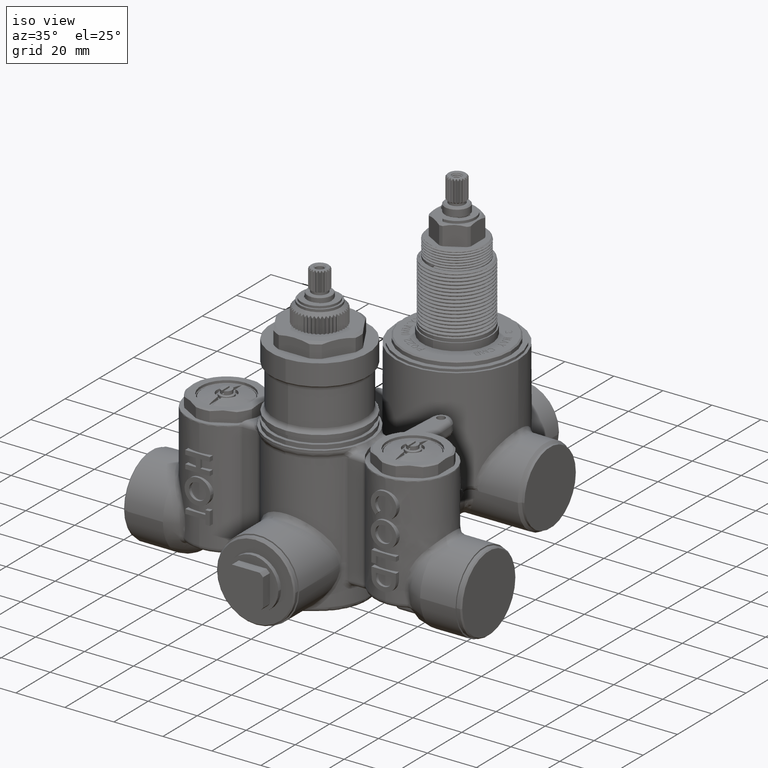
[diagram: clean part render]
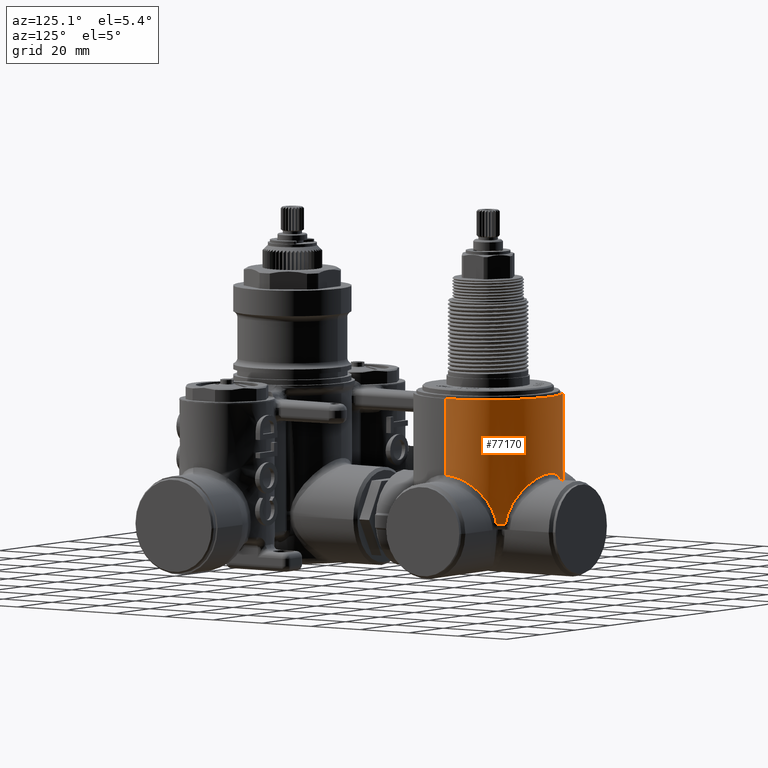
[diagram: tour spotlight — one face highlighted and labeled with its STEP entity id]
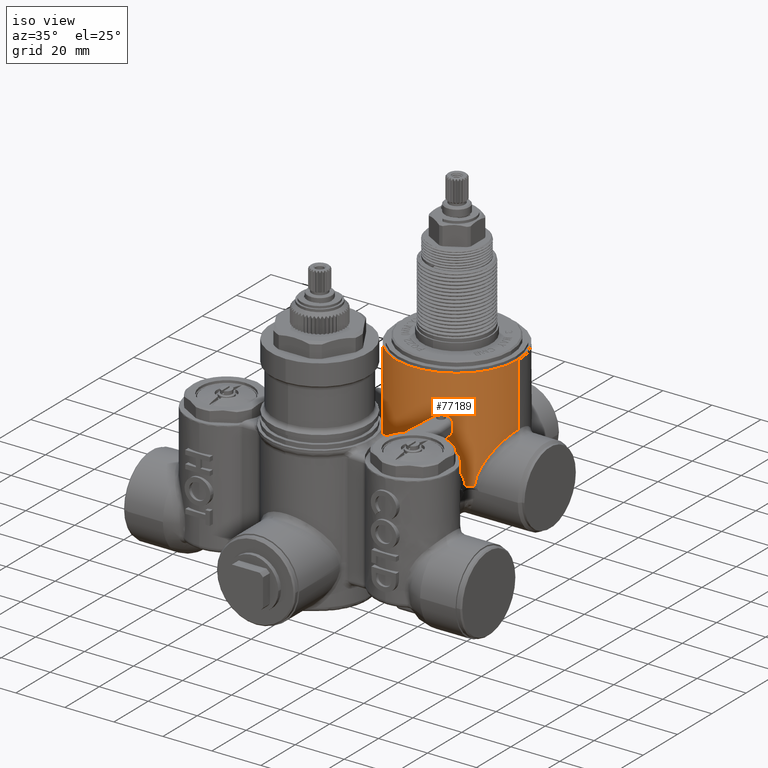
[diagram: tour spotlight — one face highlighted and labeled with its STEP entity id]
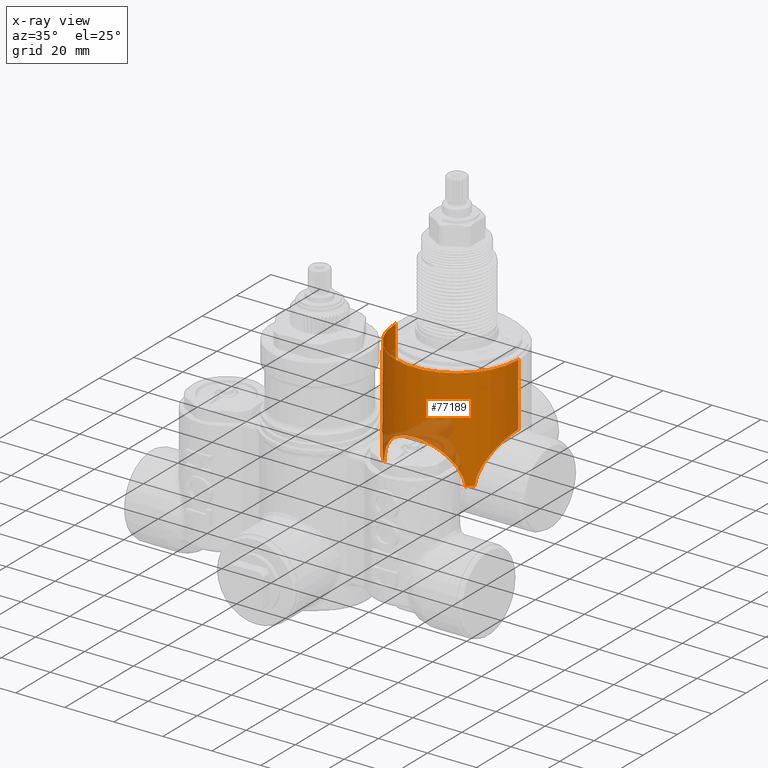
[diagram: x-ray of the same camera — body ghosted, this tour face saturated]
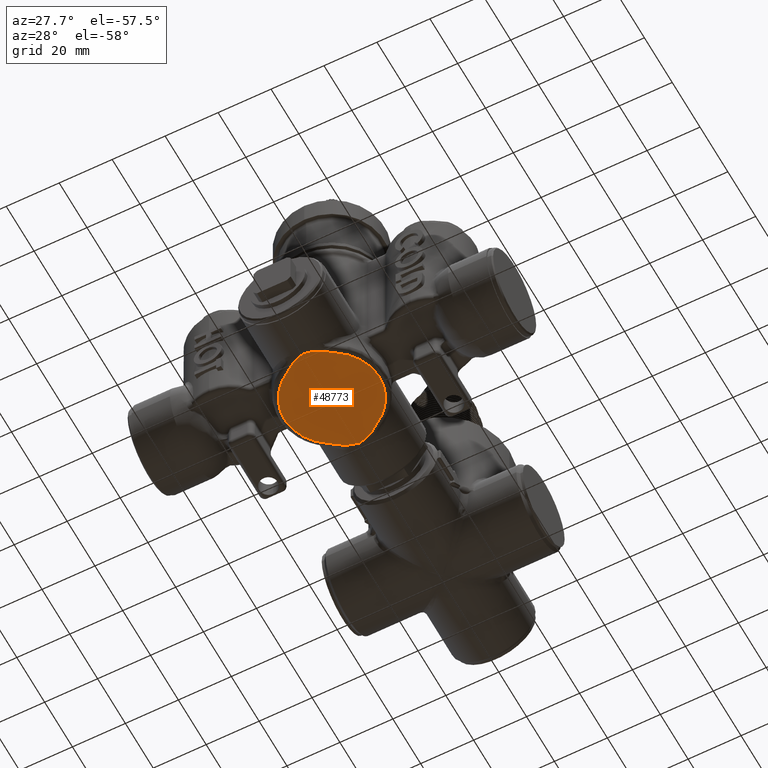
[diagram: tour spotlight — one face highlighted and labeled with its STEP entity id]
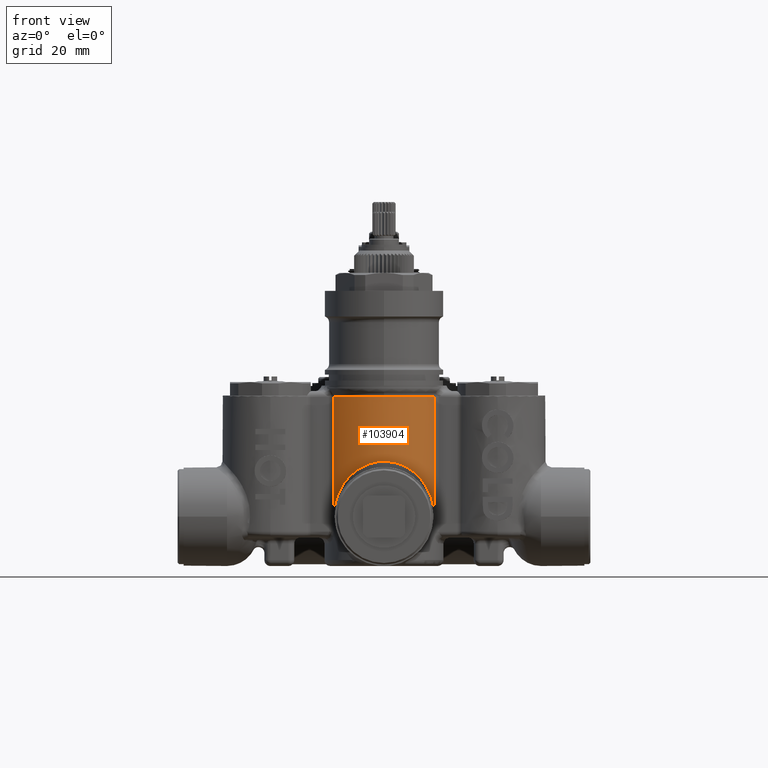
[diagram: tour spotlight — one face highlighted and labeled with its STEP entity id]
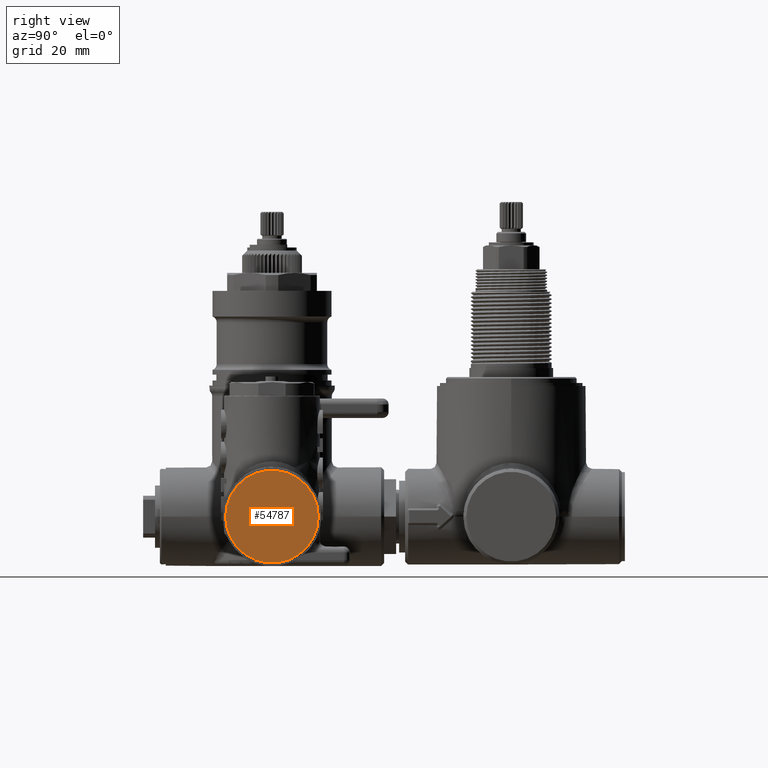
[diagram: tour spotlight — one face highlighted and labeled with its STEP entity id]
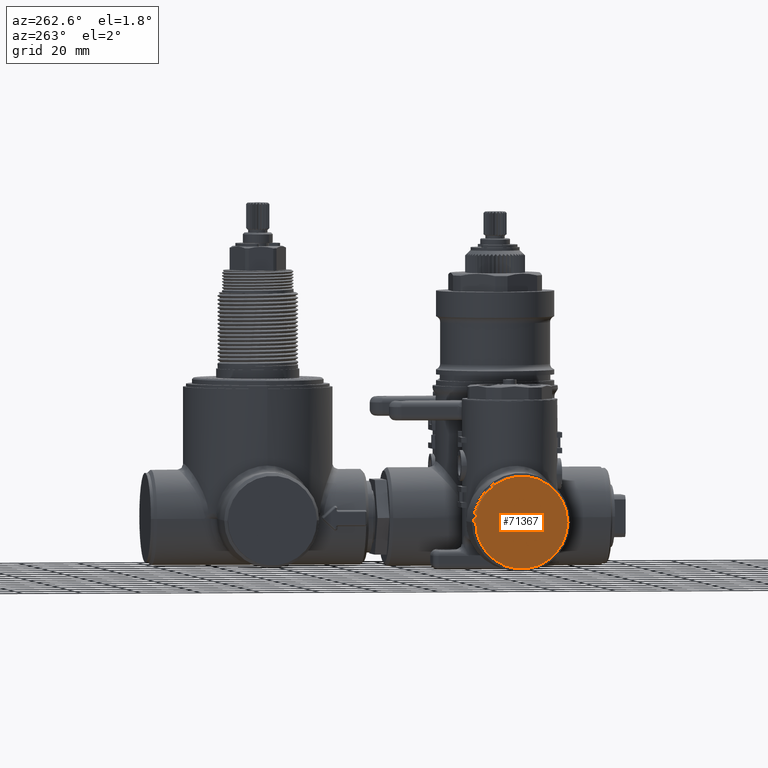
[diagram: tour spotlight — one face highlighted and labeled with its STEP entity id]
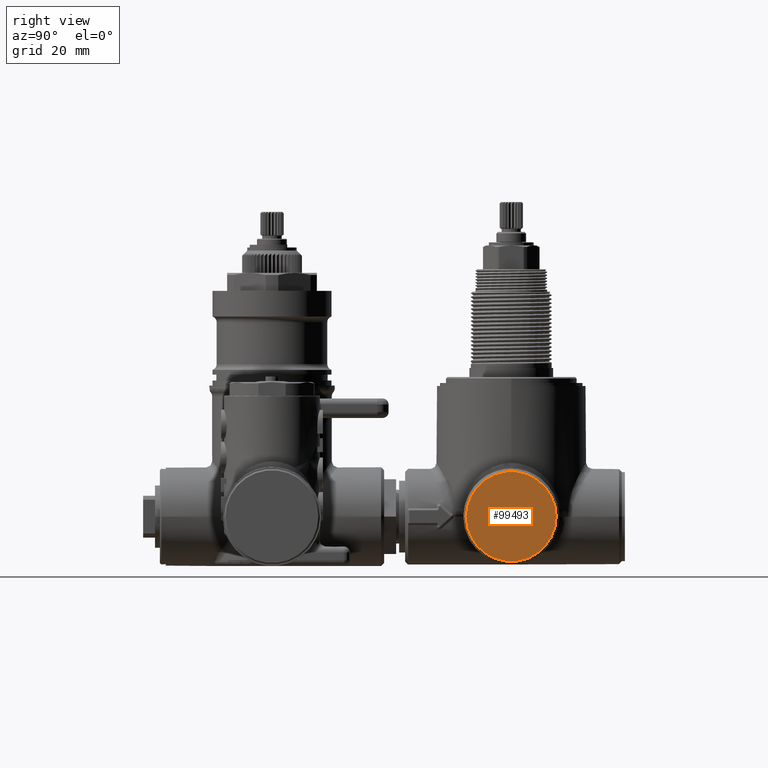
[diagram: tour spotlight — one face highlighted and labeled with its STEP entity id]
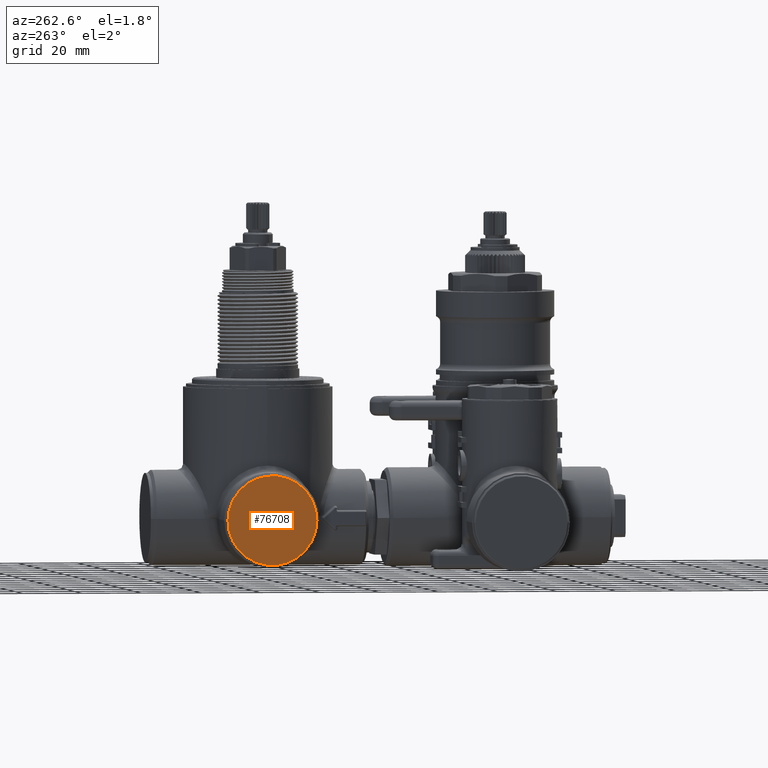
[diagram: tour spotlight — one face highlighted and labeled with its STEP entity id]
A machine part: a face-by-face anatomy tour. The part has 1875 B-rep faces; the first image is the clean iso view, then the 8 largest visible faces are spotlighted one at a time (largest first), each with its STEP entity span.

Face 1 — auxiliary view, entity #77170. In plain terms, the highlighted cylindrical surface (partial cylindrical patch) has radius 25 mm, axis along (0, 0, -1).
Definition (entity closure, byte-faithful):
#11381=DIRECTION('',(9.006665705588E-12,-6.872857419135E-9,1.E0));
#11382=VECTOR('',#11381,1.011811024292E0);
#11383=CARTESIAN_POINT('',(-9.842519683503E-1,3.150000007223E0,
-1.641728583348E0));
#11384=LINE('',#11383,#11382);
#11385=CARTESIAN_POINT('',(-7.365728374277E-1,3.802849569491E0,
-2.279209115323E0));
#11386=CARTESIAN_POINT('',(-7.378240384904E-1,3.801437910774E0,
-2.263795308278E0));
#11387=CARTESIAN_POINT('',(-7.412596240378E-1,3.797546801068E0,
-2.232608192378E0));
#11388=CARTESIAN_POINT('',(-7.490364112597E-1,3.788562436330E0,
-2.184800280761E0));
#11389=CARTESIAN_POINT('',(-7.596240737614E-1,3.775970013866E0,
-2.135821877027E0));
#11390=CARTESIAN_POINT('',(-7.728059785773E-1,3.759674354640E0,
-2.086597911693E0));
#11391=CARTESIAN_POINT('',(-7.885254915939E-1,3.739273380768E0,
-2.037021870270E0));
#11392=CARTESIAN_POINT('',(-8.064655837973E-1,3.714555498512E0,
-1.987733687494E0));
#11393=CARTESIAN_POINT('',(-8.260346261067E-1,3.685606785584E0,
-1.939651160351E0));
#11394=CARTESIAN_POINT('',(-8.465082888836E-1,3.652706850499E0,
-1.893707874329E0));
#11395=CARTESIAN_POINT('',(-8.668723470815E-1,3.616776213136E0,
-1.851241221950E0));
#11396=CARTESIAN_POINT('',(-8.864928515418E-1,3.578396296821E0,
-1.812620667580E0));
#11397=CARTESIAN_POINT('',(-9.049252923472E-1,3.537984784936E0,
-1.778000605970E0));
#11398=CARTESIAN_POINT('',(-9.217074310454E-1,3.496240497671E0,
-1.747623696628E0));
#11399=CARTESIAN_POINT('',(-9.365364250124E-1,3.453844857528E0,
-1.721567489217E0));
#11400=CARTESIAN_POINT('',(-9.493898164934E-1,3.410919898368E0,
-1.699503638656E0));
#11401=CARTESIAN_POINT('',(-9.602736504077E-1,3.367476364953E0,
-1.681161032896E0));
#11402=CARTESIAN_POINT('',(-9.691584521487E-1,3.323622324577E0,
-1.666404849797E0));
#11403=CARTESIAN_POINT('',(-9.759727164264E-1,3.279904681956E0,
-1.655210450670E0));
#11404=CARTESIAN_POINT('',(-9.807838496049E-1,3.236314588776E0,
-1.647349256320E0));
#11405=CARTESIAN_POINT('',(-9.836306511672E-1,3.192962778725E0,
-1.642717496104E0));
#11406=CARTESIAN_POINT('',(-9.842519683445E-1,3.164275786783E0,
-1.641707716756E0));
#11407=CARTESIAN_POINT('',(-9.842519683503E-1,3.150000007223E0,
-1.641728583348E0));
#11409=CARTESIAN_POINT('',(-6.528495080329E-1,3.886572755895E0,
-2.279208616100E0));
#11410=CARTESIAN_POINT('',(-6.564913991221E-1,3.883344824267E0,
-2.278073099348E0));
#11411=CARTESIAN_POINT('',(-6.637621217570E-1,3.876804014542E0,
-2.276292262211E0));
#11412=CARTESIAN_POINT('',(-6.745955428673E-1,3.866760755198E0,
-2.274702661724E0));
#11413=CARTESIAN_POINT('',(-6.853330523225E-1,3.856501425811E0,
-2.273888382160E0));
#11414=CARTESIAN_POINT('',(-6.959509500244E-1,3.846045083558E0,
-2.273640016680E0));
#11415=CARTESIAN_POINT('',(-7.064668594969E-1,3.835369411936E0,
-2.273885432145E0));
#11416=CARTESIAN_POINT('',(-7.167711229120E-1,3.824584843493E0,
-2.274703103353E0));
#11417=CARTESIAN_POINT('',(-7.268297955325E-1,3.813733831848E0,
-2.276297315741E0));
#11418=CARTESIAN_POINT('',(-7.333582762173E-1,3.806476375331E0,
-2.278078302630E0));
#11419=CARTESIAN_POINT('',(-7.365728374277E-1,3.802849569491E0,
-2.279209115323E0));
#11421=CARTESIAN_POINT('',(6.528495695289E-1,3.886572837394E0,
-2.279209115323E0));
#11422=CARTESIAN_POINT('',(6.514397433996E-1,3.887822414173E0,
-2.263815384952E0));
#11423=CARTESIAN_POINT('',(6.475549565615E-1,3.891252426360E0,
-2.232668636727E0));
#11424=CARTESIAN_POINT('',(6.385879567710E-1,3.899014477395E0,
-2.184921516419E0));
#11425=CARTESIAN_POINT('',(6.260222879730E-1,3.909580675947E0,
-2.136005353341E0));
#11426=CARTESIAN_POINT('',(6.097633533904E-1,3.922735222723E0,
-2.086843323099E0));
#11427=CARTESIAN_POINT('',(5.894130989616E-1,3.938420269095E0,
-2.037333511012E0));
#11428=CARTESIAN_POINT('',(5.647567412042E-1,3.956323631203E0,
-1.988103518233E0));
#11429=CARTESIAN_POINT('',(5.358801931365E-1,3.975856070205E0,
-1.940071295602E0));
#11430=CARTESIAN_POINT('',(5.030553223569E-1,3.996300026190E0,
-1.894158423034E0));
#11431=CARTESIAN_POINT('',(4.671992818034E-1,4.016643210635E0,
-1.851705577610E0));
#11432=CARTESIAN_POINT('',(4.288959457421E-1,4.036249958851E0,
-1.813087593206E0));
#11433=CARTESIAN_POINT('',(3.885652345607E-1,4.054675010063E0,
-1.778461908193E0));
#11434=CARTESIAN_POINT('',(3.468965345819E-1,4.071459570470E0,
-1.748065603008E0));
#11435=CARTESIAN_POINT('',(3.045744031259E-1,4.086298627704E0,
-1.721980452622E0));
#11436=CARTESIAN_POINT('',(2.616919704739E-1,4.099176833512E0,
-1.699866749982E0));
#11437=CARTESIAN_POINT('',(2.183072002400E-1,4.110083730457E0,
-1.681479835056E0));
#11438=CARTESIAN_POINT('',(1.746056480607E-1,4.118978524827E0,
-1.666698929519E0));
#11439=CARTESIAN_POINT('',(1.311274149405E-1,4.125806109031E0,
-1.655476245983E0));
#11440=CARTESIAN_POINT('',(8.768546403815E-2,4.130660807798E0,
-1.647553146462E0));
#11441=CARTESIAN_POINT('',(4.427082214328E-2,4.133578061315E0,
-1.642822350164E0));
#11442=CARTESIAN_POINT('',(5.802138081203E-4,4.134574359768E0,
-1.641205713643E0));
#11443=CARTESIAN_POINT('',(-4.293592215104E-2,4.133635179104E0,
-1.642728577889E0));
#11444=CARTESIAN_POINT('',(-8.641011764979E-2,4.130776922370E0,
-1.647364978898E0));
#11445=CARTESIAN_POINT('',(-1.300967737274E-1,4.125947663519E0,
-1.655244001321E0));
#11446=CARTESIAN_POINT('',(-1.736800009985E-1,4.119142791282E0,
-1.666427681488E0));
#11447=CARTESIAN_POINT('',(-2.171114384017E-1,4.110350974004E0,
-1.681033565468E0));
#11448=CARTESIAN_POINT('',(-2.604727575022E-1,4.099514672305E0,
-1.699292036633E0));
#11449=CARTESIAN_POINT('',(-3.036788817173E-1,4.086596635993E0,
-1.721461348651E0));
#11450=CARTESIAN_POINT('',(-3.463517025260E-1,4.071666035327E0,
-1.747697746962E0));
#11451=CARTESIAN_POINT('',(-3.879244670539E-1,4.054948566608E0,
-1.777958413058E0));
#11452=CARTESIAN_POINT('',(-4.283557176410E-1,4.036514291434E0,
-1.812579382820E0));
#11453=CARTESIAN_POINT('',(-4.668964007205E-1,4.016812791322E0,
-1.851355068752E0));
#11454=CARTESIAN_POINT('',(-5.030638667520E-1,3.996296053659E0,
-1.894165024738E0));
#11455=CARTESIAN_POINT('',(-5.357002254386E-1,3.975968788182E0,
-1.939818636430E0));
#11456=CARTESIAN_POINT('',(-5.644809646266E-1,3.956516197906E0,
-1.987608165388E0));
#11457=CARTESIAN_POINT('',(-5.891510633442E-1,3.938617414949E0,
-2.036754110123E0));
#11458=CARTESIAN_POINT('',(-6.096500753799E-1,3.922826352156E0,
-2.086515983979E0));
#11459=CARTESIAN_POINT('',(-6.259691739483E-1,3.909624134309E0,
-2.135838412621E0));
#11460=CARTESIAN_POINT('',(-6.384843412471E-1,3.899102788372E0,
-2.184458877774E0));
#11461=CARTESIAN_POINT('',(-6.475220959882E-1,3.891281667312E0,
-2.232401918086E0));
#11462=CARTESIAN_POINT('',(-6.514271316936E-1,3.887833456350E0,
-2.263704772497E0));
#11463=CARTESIAN_POINT('',(-6.528495080329E-1,3.886572755895E0,
-2.279208616100E0));
#11465=CARTESIAN_POINT('',(7.365727559284E-1,3.802849507995E0,
-2.279208616100E0));
#11466=CARTESIAN_POINT('',(7.333448243E-1,3.806491399084E0,-2.278073099348E0));
#11467=CARTESIAN_POINT('',(7.268040145262E-1,3.813762121775E0,
-2.276292262211E0));
#11468=CARTESIAN_POINT('',(7.167607552019E-1,3.824595542863E0,
-2.274702661724E0));
#11469=CARTESIAN_POINT('',(7.065014258099E-1,3.835333052324E0,
-2.273888382160E0));
#11470=CARTESIAN_POINT('',(6.960450835591E-1,3.845950950024E0,
-2.273640016680E0));
#11471=CARTESIAN_POINT('',(6.853694119344E-1,3.856466859498E0,
-2.273885432145E0));
#11472=CARTESIAN_POINT('',(6.745848434976E-1,3.866771122908E0,
-2.274703103353E0));
#11473=CARTESIAN_POINT('',(6.637338318308E-1,3.876829795548E0,
-2.276297315741E0));
#11474=CARTESIAN_POINT('',(6.564763753687E-1,3.883358276184E0,
-2.278078302630E0));
#11475=CARTESIAN_POINT('',(6.528495695289E-1,3.886572837394E0,
-2.279209115323E0));
#11477=CARTESIAN_POINT('',(9.842519683503E-1,3.149999993046E0,
-1.641728583348E0));
#11478=CARTESIAN_POINT('',(9.842519683503E-1,3.164243576963E0,
-1.641707108672E0));
#11479=CARTESIAN_POINT('',(9.836323163340E-1,3.192883063353E0,
-1.642714623322E0));
#11480=CARTESIAN_POINT('',(9.808006923393E-1,3.236123151937E0,
-1.647322379217E0));
#11481=CARTESIAN_POINT('',(9.759841466360E-1,3.279835726592E0,
-1.655191347036E0));
#11482=CARTESIAN_POINT('',(9.691675032027E-1,3.323551625969E0,
-1.666389398511E0));
#11483=CARTESIAN_POINT('',(9.603681486692E-1,3.367034805820E0,
-1.681003850597E0));
#11484=CARTESIAN_POINT('',(9.495466484736E-1,3.410353081378E0,
-1.699236805435E0));
#11485=CARTESIAN_POINT('',(9.366440239728E-1,3.453532625189E0,
-1.721378980027E0));
#11486=CARTESIAN_POINT('',(9.217130955569E-1,3.496227879309E0,
-1.747613858975E0));
#11487=CARTESIAN_POINT('',(9.049894570969E-1,3.537829878377E0,
-1.777882889611E0));
#11488=CARTESIAN_POINT('',(8.865538612617E-1,3.578274060221E0,
-1.812503390969E0));
#11489=CARTESIAN_POINT('',(8.668526366966E-1,3.616822654221E0,
-1.851274391756E0));
#11490=CARTESIAN_POINT('',(8.463343364265E-1,3.652999726005E0,
-1.894082142308E0));
#11491=CARTESIAN_POINT('',(8.260035323356E-1,3.685646948313E0,
-1.939737092584E0));
#11492=CARTESIAN_POINT('',(8.065443414781E-1,3.714441055008E0,
-1.987534566028E0));
#11493=CARTESIAN_POINT('',(7.886378283660E-1,3.739123946949E0,
-2.036693720689E0));
#11494=CARTESIAN_POINT('',(7.728404185271E-1,3.759632375105E0,
-2.086467341967E0));
#11495=CARTESIAN_POINT('',(7.596323504265E-1,3.775959287950E0,
-2.135803451979E0));
#11496=CARTESIAN_POINT('',(7.491066079323E-1,3.788479899498E0,
-2.184437311436E0));
#11497=CARTESIAN_POINT('',(7.412827058735E-1,3.797520922045E0,
-2.232392795522E0));
#11498=CARTESIAN_POINT('',(7.378336226219E-1,3.801426944098E0,
-2.263701984741E0));
#11499=CARTESIAN_POINT('',(7.365727559284E-1,3.802849507995E0,
-2.279208616100E0));
#11501=DIRECTION('',(9.006665705588E-12,-6.872857419135E-9,-1.E0));
#11502=VECTOR('',#11501,1.011811024292E0);
#11503=CARTESIAN_POINT('',(9.842519683412E-1,3.15E0,-6.299175590551E-1));
#11504=LINE('',#11503,#11502);
#11597=CARTESIAN_POINT('',(-9.842519683503E-1,3.150000007223E0,
-1.641728583348E0));
#11621=CARTESIAN_POINT('',(0.E0,3.15E0,-6.299175590551E-1));
#11622=DIRECTION('',(0.E0,0.E0,1.E0));
#11623=DIRECTION('',(1.E0,0.E0,0.E0));
#11624=AXIS2_PLACEMENT_3D('',#11621,#11622,#11623);
#40992=CARTESIAN_POINT('',(9.842519683412E-1,3.15E0,-6.299175590551E-1));
#40993=CARTESIAN_POINT('',(9.842519683503E-1,3.149999993046E0,
-1.641728583348E0));
#40994=VERTEX_POINT('',#40992);
#40995=VERTEX_POINT('',#40993);
#41000=VERTEX_POINT('',#11597);
#41001=CARTESIAN_POINT('',(-9.842519683412E-1,3.150000000269E0,
-6.299175590551E-1));
#41002=VERTEX_POINT('',#41001);
#41003=VERTEX_POINT('',#11385);
#41004=VERTEX_POINT('',#11409);
#41005=VERTEX_POINT('',#11421);
#41006=VERTEX_POINT('',#11465);
#77148=CARTESIAN_POINT('',(0.E0,3.15E0,-6.299175590551E-1));
#77149=DIRECTION('',(0.E0,0.E0,-1.E0));
#77150=DIRECTION('',(1.E0,0.E0,0.E0));
#77151=AXIS2_PLACEMENT_3D('',#77148,#77149,#77150);
#77152=CYLINDRICAL_SURFACE('',#77151,9.842519685039E-1);
#77154=ORIENTED_EDGE('',*,*,#77153,.F.);
#77155=ORIENTED_EDGE('',*,*,#77134,.F.);
#77157=ORIENTED_EDGE('',*,*,#77156,.F.);
#77159=ORIENTED_EDGE('',*,*,#77158,.F.);
#77161=ORIENTED_EDGE('',*,*,#77160,.F.);
#77163=ORIENTED_EDGE('',*,*,#77162,.F.);
#77165=ORIENTED_EDGE('',*,*,#77164,.F.);
#77167=ORIENTED_EDGE('',*,*,#77166,.T.);
#77168=EDGE_LOOP('',(#77154,#77155,#77157,#77159,#77161,#77163,#77165,#77167));
#77169=FACE_OUTER_BOUND('',#77168,.F.);
#77170=ADVANCED_FACE('',(#77169),#77152,.T.);
#11408=B_SPLINE_CURVE_WITH_KNOTS('',3,(#11385,#11386,#11387,#11388,#11389,
#11390,#11391,#11392,#11393,#11394,#11395,#11396,#11397,#11398,#11399,#11400,
#11401,#11402,#11403,#11404,#11405,#11406,#11407),.UNSPECIFIED.,.F.,.F.,(4,1,1,
1,1,1,1,1,1,1,1,1,1,1,1,1,1,1,1,1,4),(0.E0,5.E-2,1.E-1,1.5E-1,2.E-1,2.5E-1,
3.E-1,3.5E-1,4.E-1,4.5E-1,5.E-1,5.5E-1,6.E-1,6.5E-1,7.E-1,7.5E-1,8.E-1,8.5E-1,
9.E-1,9.5E-1,1.E0),.UNSPECIFIED.);
#11420=B_SPLINE_CURVE_WITH_KNOTS('',3,(#11409,#11410,#11411,#11412,#11413,
#11414,#11415,#11416,#11417,#11418,#11419),.UNSPECIFIED.,.F.,.F.,(4,1,1,1,1,1,1,
1,4),(0.E0,1.250001145302E-1,2.500001031739E-1,3.750000918176E-1,
5.000000804612E-1,6.250000691049E-1,7.500000577486E-1,8.750000463923E-1,1.E0),
.UNSPECIFIED.);
#11464=B_SPLINE_CURVE_WITH_KNOTS('',3,(#11421,#11422,#11423,#11424,#11425,
#11426,#11427,#11428,#11429,#11430,#11431,#11432,#11433,#11434,#11435,#11436,
#11437,#11438,#11439,#11440,#11441,#11442,#11443,#11444,#11445,#11446,#11447,
#11448,#11449,#11450,#11451,#11452,#11453,#11454,#11455,#11456,#11457,#11458,
#11459,#11460,#11461,#11462,#11463),.UNSPECIFIED.,.F.,.F.,(4,1,1,1,1,1,1,1,1,1,
1,1,1,1,1,1,1,1,1,1,1,1,1,1,1,1,1,1,1,1,1,1,1,1,1,1,1,1,1,1,4),(0.E0,2.5E-2,
5.E-2,7.5E-2,1.E-1,1.25E-1,1.5E-1,1.75E-1,2.E-1,2.25E-1,2.5E-1,2.75E-1,3.E-1,
3.25E-1,3.5E-1,3.75E-1,4.E-1,4.25E-1,4.5E-1,4.75E-1,5.E-1,5.25E-1,5.5E-1,
5.75E-1,6.E-1,6.25E-1,6.5E-1,6.75E-1,7.E-1,7.25E-1,7.5E-1,7.75E-1,8.E-1,8.25E-1,
8.5E-1,8.75E-1,9.E-1,9.25E-1,9.5E-1,9.75E-1,1.E0),.UNSPECIFIED.);
#11476=B_SPLINE_CURVE_WITH_KNOTS('',3,(#11465,#11466,#11467,#11468,#11469,
#11470,#11471,#11472,#11473,#11474,#11475),.UNSPECIFIED.,.F.,.F.,(4,1,1,1,1,1,1,
1,4),(0.E0,1.250001145302E-1,2.500001031739E-1,3.750000918176E-1,
5.000000804613E-1,6.250000691050E-1,7.500000577487E-1,8.750000463924E-1,1.E0),
.UNSPECIFIED.);
#11500=B_SPLINE_CURVE_WITH_KNOTS('',3,(#11477,#11478,#11479,#11480,#11481,
#11482,#11483,#11484,#11485,#11486,#11487,#11488,#11489,#11490,#11491,#11492,
#11493,#11494,#11495,#11496,#11497,#11498,#11499),.UNSPECIFIED.,.F.,.F.,(4,1,1,
1,1,1,1,1,1,1,1,1,1,1,1,1,1,1,1,1,4),(0.E0,5.E-2,1.E-1,1.5E-1,2.E-1,2.5E-1,
3.E-1,3.5E-1,4.E-1,4.5E-1,5.E-1,5.5E-1,6.E-1,6.5E-1,7.E-1,7.5E-1,8.E-1,8.5E-1,
9.E-1,9.5E-1,1.E0),.UNSPECIFIED.);
#11625=CIRCLE('',#11624,9.842519685039E-1);
#77134=EDGE_CURVE('',#41003,#41000,#11408,.T.);
#77153=EDGE_CURVE('',#41000,#41002,#11384,.T.);
#77156=EDGE_CURVE('',#41004,#41003,#11420,.T.);
#77158=EDGE_CURVE('',#41005,#41004,#11464,.T.);
#77160=EDGE_CURVE('',#41006,#41005,#11476,.T.);
#77162=EDGE_CURVE('',#40995,#41006,#11500,.T.);
#77164=EDGE_CURVE('',#40994,#40995,#11504,.T.);
#77166=EDGE_CURVE('',#40994,#41002,#11625,.T.);

Face 2 — iso view, entity #77189. An x-ray twin of the same camera follows (body ghosted, this face saturated) — the face is partly hidden behind the body. In plain terms, the highlighted cylindrical surface (partial cylindrical patch) has radius 25 mm, axis along (0, 0, -1).
Definition (entity closure, byte-faithful):
#11381=DIRECTION('',(9.006665705588E-12,-6.872857419135E-9,1.E0));
#11382=VECTOR('',#11381,1.011811024292E0);
#11383=CARTESIAN_POINT('',(-9.842519683503E-1,3.150000007223E0,
-1.641728583348E0));
#11384=LINE('',#11383,#11382);
#11501=DIRECTION('',(9.006665705588E-12,-6.872857419135E-9,-1.E0));
#11502=VECTOR('',#11501,1.011811024292E0);
#11503=CARTESIAN_POINT('',(9.842519683412E-1,3.15E0,-6.299175590551E-1));
#11504=LINE('',#11503,#11502);
#11505=CARTESIAN_POINT('',(7.365728374947E-1,2.497150430584E0,
-2.279209115323E0));
#11506=CARTESIAN_POINT('',(7.378240381747E-1,2.498562088870E0,
-2.263795310808E0));
#11507=CARTESIAN_POINT('',(7.412596233471E-1,2.502453198147E0,
-2.232608198873E0));
#11508=CARTESIAN_POINT('',(7.490364096934E-1,2.511437561841E0,
-2.184800289397E0));
#11509=CARTESIAN_POINT('',(7.596240718696E-1,2.524029983840E0,
-2.135821885565E0));
#11510=CARTESIAN_POINT('',(7.728059767296E-1,2.540325643017E0,
-2.086597918820E0));
#11511=CARTESIAN_POINT('',(7.885254898107E-1,2.560726616847E0,
-2.037021875931E0));
#11512=CARTESIAN_POINT('',(8.064655820931E-1,2.585444499051E0,
-1.987733691705E0));
#11513=CARTESIAN_POINT('',(8.260346247481E-1,2.614393212303E0,
-1.939651163237E0));
#11514=CARTESIAN_POINT('',(8.465082881555E-1,2.647293148242E0,
-1.893707876012E0));
#11515=CARTESIAN_POINT('',(8.668723469820E-1,2.683223786644E0,
-1.851241222420E0));
#11516=CARTESIAN_POINT('',(8.864928519322E-1,2.721603703951E0,
-1.812620666815E0));
#11517=CARTESIAN_POINT('',(9.049252930624E-1,2.762015216704E0,
-1.778000604449E0));
#11518=CARTESIAN_POINT('',(9.217074318559E-1,2.803759504472E0,
-1.747623695130E0));
#11519=CARTESIAN_POINT('',(9.365364258168E-1,2.846155144934E0,
-1.721567487927E0));
#11520=CARTESIAN_POINT('',(9.493898173157E-1,2.889080104591E0,
-1.699503637286E0));
#11521=CARTESIAN_POINT('',(9.602736511800E-1,2.932523638454E0,
-1.681161031461E0));
#11522=CARTESIAN_POINT('',(9.691584526561E-1,2.976377678347E0,
-1.666404848770E0));
#11523=CARTESIAN_POINT('',(9.759727166057E-1,3.020095319571E0,
-1.655210450270E0));
#11524=CARTESIAN_POINT('',(9.807838495901E-1,3.063685411275E0,
-1.647349256347E0));
#11525=CARTESIAN_POINT('',(9.836306511279E-1,3.107037220461E0,
-1.642717496212E0));
#11526=CARTESIAN_POINT('',(9.842519683503E-1,3.135724212893E0,
-1.641707716816E0));
#11527=CARTESIAN_POINT('',(9.842519683503E-1,3.149999993046E0,
-1.641728583348E0));
#11529=CARTESIAN_POINT('',(6.528495715163E-1,2.413427142879E0,
-2.279208704526E0));
#11530=CARTESIAN_POINT('',(6.564914626056E-1,2.416655074508E0,
-2.278073187774E0));
#11531=CARTESIAN_POINT('',(6.637620922943E-1,2.423196032437E0,
-2.276292221172E0));
#11532=CARTESIAN_POINT('',(6.745955507619E-1,2.433239232214E0,
-2.274702672721E0));
#11533=CARTESIAN_POINT('',(6.853330502070E-1,2.443498577562E0,
-2.273888379214E0));
#11534=CARTESIAN_POINT('',(6.959509505918E-1,2.453954915538E0,
-2.273640017470E0));
#11535=CARTESIAN_POINT('',(7.064668593428E-1,2.464630588304E0,
-2.273885431934E0));
#11536=CARTESIAN_POINT('',(7.167711229612E-1,2.475415156451E0,
-2.274703103410E0));
#11537=CARTESIAN_POINT('',(7.268297954898E-1,2.486266168135E0,
-2.276297315725E0));
#11538=CARTESIAN_POINT('',(7.333582762843E-1,2.493523624745E0,
-2.278078302630E0));
#11539=CARTESIAN_POINT('',(7.365728374947E-1,2.497150430584E0,
-2.279209115323E0));
#11541=CARTESIAN_POINT('',(-6.528494932759E-1,2.413427207742E0,
-2.279208894620E0));
#11542=CARTESIAN_POINT('',(-6.514251542159E-1,2.412164767661E0,
-2.263694330008E0));
#11543=CARTESIAN_POINT('',(-6.475173958910E-1,2.408714235964E0,
-2.232375018326E0));
#11544=CARTESIAN_POINT('',(-6.384915619104E-1,2.400903575912E0,
-2.184501458636E0));
#11545=CARTESIAN_POINT('',(-6.259675983749E-1,2.390373744985E0,
-2.135812017144E0));
#11546=CARTESIAN_POINT('',(-6.095428349519E-1,2.377088293831E0,
-2.086215879995E0));
#11547=CARTESIAN_POINT('',(-5.890232408048E-1,2.361286458573E0,
-2.036469600208E0));
#11548=CARTESIAN_POINT('',(-5.642697305183E-1,2.343334891424E0,
-1.987224087974E0));
#11549=CARTESIAN_POINT('',(-5.354312820047E-1,2.323855483432E0,
-1.939404179388E0));
#11550=CARTESIAN_POINT('',(-5.027219725663E-1,2.303501143649E0,
-1.893729323445E0));
#11551=CARTESIAN_POINT('',(-4.666493857198E-1,2.283056341687E0,
-1.851093642962E0));
#11552=CARTESIAN_POINT('',(-4.281975674896E-1,2.263411261009E0,
-1.812437252434E0));
#11553=CARTESIAN_POINT('',(-3.878242048143E-1,2.245006969327E0,
-1.777875232832E0));
#11554=CARTESIAN_POINT('',(-3.460775816955E-1,2.228229187060E0,
-1.747511637695E0));
#11555=CARTESIAN_POINT('',(-3.034536894239E-1,2.213332909216E0,
-1.721339508724E0));
#11556=CARTESIAN_POINT('',(-2.603889186685E-1,2.200463927670E0,
-1.699256812137E0));
#11557=CARTESIAN_POINT('',(-2.170108298725E-1,2.189623704199E0,
-1.680989391201E0));
#11558=CARTESIAN_POINT('',(-1.733481488206E-1,2.180794943595E0,
-1.666326485543E0));
#11559=CARTESIAN_POINT('',(-1.297652034815E-1,2.174011596259E0,
-1.655177346109E0));
#11560=CARTESIAN_POINT('',(-8.637475855628E-2,2.169222759046E0,
-1.647364336136E0));
#11561=CARTESIAN_POINT('',(-4.290883887230E-2,2.166362764257E0,
-1.642725750250E0));
#11562=CARTESIAN_POINT('',(6.330900464675E-4,2.165425606994E0,
-1.641205635058E0));
#11563=CARTESIAN_POINT('',(4.432287326957E-2,2.166424315342E0,
-1.642825972031E0));
#11564=CARTESIAN_POINT('',(8.770470359257E-2,2.169342333690E0,
-1.647558580436E0));
#11565=CARTESIAN_POINT('',(1.310607904919E-1,2.174184528947E0,
-1.655460130684E0));
#11566=CARTESIAN_POINT('',(1.746589842951E-1,2.181029716098E0,
-1.666713925810E0));
#11567=CARTESIAN_POINT('',(2.183528072157E-1,2.189927347427E0,
-1.681497211222E0));
#11568=CARTESIAN_POINT('',(2.617397727922E-1,2.200835106633E0,
-1.699887014668E0));
#11569=CARTESIAN_POINT('',(3.047449162404E-1,2.213754854840E0,
-1.722072505851E0));
#11570=CARTESIAN_POINT('',(3.471279905267E-1,2.228627374215E0,
-1.748222053036E0));
#11571=CARTESIAN_POINT('',(3.888131478504E-1,2.245429996587E0,
-1.778653504757E0));
#11572=CARTESIAN_POINT('',(4.292495617162E-1,2.263920373338E0,
-1.813415074601E0));
#11573=CARTESIAN_POINT('',(4.675094150637E-1,2.283524951461E0,
-1.852045013235E0));
#11574=CARTESIAN_POINT('',(5.033073287203E-1,2.303851933341E0,
-1.894490383659E0));
#11575=CARTESIAN_POINT('',(5.359626773450E-1,2.324199937608E0,
-1.940209182311E0));
#11576=CARTESIAN_POINT('',(5.647540518532E-1,2.343675760807E0,
-1.988108565296E0));
#11577=CARTESIAN_POINT('',(5.893175390384E-1,2.361509488598E0,
-2.037136139477E0));
#11578=CARTESIAN_POINT('',(6.096427526279E-1,2.377169105892E0,
-2.086517172099E0));
#11579=CARTESIAN_POINT('',(6.259782705714E-1,2.390382332657E0,
-2.135843503703E0));
#11580=CARTESIAN_POINT('',(6.385763561235E-1,2.400975503741E0,
-2.184851843051E0));
#11581=CARTESIAN_POINT('',(6.475618193520E-1,2.408753514681E0,
-2.232702365778E0));
#11582=CARTESIAN_POINT('',(6.514441218172E-1,2.412181445081E0,
-2.263834902906E0));
#11583=CARTESIAN_POINT('',(6.528495715163E-1,2.413427142879E0,
-2.279208704526E0));
#11585=CARTESIAN_POINT('',(-7.365727558615E-1,2.497150491929E0,
-2.279208616100E0));
#11586=CARTESIAN_POINT('',(-7.333448242330E-1,2.493508600840E0,
-2.278073099348E0));
#11587=CARTESIAN_POINT('',(-7.268040145714E-1,2.486237878252E0,
-2.276292262252E0));
#11588=CARTESIAN_POINT('',(-7.167607551444E-1,2.475404457157E0,
-2.274702661582E0));
#11589=CARTESIAN_POINT('',(-7.065014259946E-1,2.464666947571E0,
-2.273888382689E0));
#11590=CARTESIAN_POINT('',(-6.960450828777E-1,2.454049050379E0,
-2.273640014710E0));
#11591=CARTESIAN_POINT('',(-6.853694144754E-1,2.443533138998E0,
-2.273885439499E0));
#11592=CARTESIAN_POINT('',(-6.745848340151E-1,2.433228882705E0,
-2.274703075907E0));
#11593=CARTESIAN_POINT('',(-6.637338672199E-1,2.423170183504E0,
-2.276297418170E0));
#11594=CARTESIAN_POINT('',(-6.564762991158E-1,2.416641768953E0,
-2.278078081928E0));
#11595=CARTESIAN_POINT('',(-6.528494932759E-1,2.413427207742E0,
-2.279208894620E0));
#11597=CARTESIAN_POINT('',(-9.842519683503E-1,3.150000007223E0,
-1.641728583348E0));
#11598=CARTESIAN_POINT('',(-9.842519683562E-1,3.135756423612E0,
-1.641707108637E0));
#11599=CARTESIAN_POINT('',(-9.836323163776E-1,3.107116937891E0,
-1.642714623217E0));
#11600=CARTESIAN_POINT('',(-9.808006924711E-1,3.063876849562E0,
-1.647322378967E0));
#11601=CARTESIAN_POINT('',(-9.759841468194E-1,3.020164274751E0,
-1.655191346718E0));
#11602=CARTESIAN_POINT('',(-9.691675033674E-1,2.976448374902E0,
-1.666389398224E0));
#11603=CARTESIAN_POINT('',(-9.603681487425E-1,2.932965194464E0,
-1.681003850408E0));
#11604=CARTESIAN_POINT('',(-9.495466484220E-1,2.889646918414E0,
-1.699236805362E0));
#11605=CARTESIAN_POINT('',(-9.366440238759E-1,2.846467374521E0,-1.72137898E0));
#11606=CARTESIAN_POINT('',(-9.217130955758E-1,2.803772120763E0,
-1.747613858830E0));
#11607=CARTESIAN_POINT('',(-9.049894573354E-1,2.762170122201E0,
-1.777882889239E0));
#11608=CARTESIAN_POINT('',(-8.865538617573E-1,2.721725940820E0,
-1.812503390324E0));
#11609=CARTESIAN_POINT('',(-8.668526373679E-1,2.683177347025E0,
-1.851274390789E0));
#11610=CARTESIAN_POINT('',(-8.463343370215E-1,2.647000274985E0,
-1.894082141015E0));
#11611=CARTESIAN_POINT('',(-8.260035327802E-1,2.614353052370E0,
-1.939737091058E0));
#11612=CARTESIAN_POINT('',(-8.065443420110E-1,2.585558945759E0,
-1.987534564373E0));
#11613=CARTESIAN_POINT('',(-7.886378290714E-1,2.560876053997E0,
-2.036693719040E0));
#11614=CARTESIAN_POINT('',(-7.728404191775E-1,2.540367625715E0,
-2.086467340650E0));
#11615=CARTESIAN_POINT('',(-7.596323508082E-1,2.524040712509E0,
-2.135803451310E0));
#11616=CARTESIAN_POINT('',(-7.491066080696E-1,2.511520100659E0,
-2.184437311408E0));
#11617=CARTESIAN_POINT('',(-7.412827057517E-1,2.502479077816E0,
-2.232392795900E0));
#11618=CARTESIAN_POINT('',(-7.378336226364E-1,2.498573055917E0,
-2.263701984927E0));
#11619=CARTESIAN_POINT('',(-7.365727558615E-1,2.497150491929E0,
-2.279208616100E0));
#11626=CARTESIAN_POINT('',(0.E0,3.15E0,-6.299175590551E-1));
#11627=DIRECTION('',(0.E0,0.E0,1.E0));
#11628=DIRECTION('',(-1.E0,0.E0,0.E0));
#11629=AXIS2_PLACEMENT_3D('',#11626,#11627,#11628);
#40992=CARTESIAN_POINT('',(9.842519683412E-1,3.15E0,-6.299175590551E-1));
#40993=CARTESIAN_POINT('',(9.842519683503E-1,3.149999993046E0,
-1.641728583348E0));
#40994=VERTEX_POINT('',#40992);
#40995=VERTEX_POINT('',#40993);
#40996=VERTEX_POINT('',#11505);
#40997=VERTEX_POINT('',#11529);
#40998=VERTEX_POINT('',#11541);
#40999=VERTEX_POINT('',#11585);
#41000=VERTEX_POINT('',#11597);
#41001=CARTESIAN_POINT('',(-9.842519683412E-1,3.150000000269E0,
-6.299175590551E-1));
#41002=VERTEX_POINT('',#41001);
#77171=CARTESIAN_POINT('',(0.E0,3.15E0,-6.299175590551E-1));
#77172=DIRECTION('',(0.E0,0.E0,-1.E0));
#77173=DIRECTION('',(1.E0,0.E0,0.E0));
#77174=AXIS2_PLACEMENT_3D('',#77171,#77172,#77173);
#77175=CYLINDRICAL_SURFACE('',#77174,9.842519685039E-1);
#77177=ORIENTED_EDGE('',*,*,#77176,.T.);
#77178=ORIENTED_EDGE('',*,*,#77164,.T.);
#77180=ORIENTED_EDGE('',*,*,#77179,.F.);
#77182=ORIENTED_EDGE('',*,*,#77181,.F.);
#77183=ORIENTED_EDGE('',*,*,#75114,.F.);
#77184=ORIENTED_EDGE('',*,*,#76505,.F.);
#77185=ORIENTED_EDGE('',*,*,#77136,.F.);
#77186=ORIENTED_EDGE('',*,*,#77153,.T.);
#77187=EDGE_LOOP('',(#77177,#77178,#77180,#77182,#77183,#77184,#77185,#77186));
#77188=FACE_OUTER_BOUND('',#77187,.F.);
#77189=ADVANCED_FACE('',(#77188),#77175,.T.);
#11528=B_SPLINE_CURVE_WITH_KNOTS('',3,(#11505,#11506,#11507,#11508,#11509,
#11510,#11511,#11512,#11513,#11514,#11515,#11516,#11517,#11518,#11519,#11520,
#11521,#11522,#11523,#11524,#11525,#11526,#11527),.UNSPECIFIED.,.F.,.F.,(4,1,1,
1,1,1,1,1,1,1,1,1,1,1,1,1,1,1,1,1,4),(0.E0,5.E-2,1.E-1,1.5E-1,2.E-1,2.5E-1,
3.E-1,3.5E-1,4.E-1,4.5E-1,5.E-1,5.5E-1,6.E-1,6.5E-1,7.E-1,7.5E-1,8.E-1,8.5E-1,
9.E-1,9.5E-1,1.E0),.UNSPECIFIED.);
#11540=B_SPLINE_CURVE_WITH_KNOTS('',3,(#11529,#11530,#11531,#11532,#11533,
#11534,#11535,#11536,#11537,#11538,#11539),.UNSPECIFIED.,.F.,.F.,(4,1,1,1,1,1,1,
1,4),(0.E0,1.250001145306E-1,2.500001031743E-1,3.750000918179E-1,
5.000000804615E-1,6.250000691052E-1,7.500000577488E-1,8.750000463924E-1,1.E0),
.UNSPECIFIED.);
#11584=B_SPLINE_CURVE_WITH_KNOTS('',3,(#11541,#11542,#11543,#11544,#11545,
#11546,#11547,#11548,#11549,#11550,#11551,#11552,#11553,#11554,#11555,#11556,
#11557,#11558,#11559,#11560,#11561,#11562,#11563,#11564,#11565,#11566,#11567,
#11568,#11569,#11570,#11571,#11572,#11573,#11574,#11575,#11576,#11577,#11578,
#11579,#11580,#11581,#11582,#11583),.UNSPECIFIED.,.F.,.F.,(4,1,1,1,1,1,1,1,1,1,
1,1,1,1,1,1,1,1,1,1,1,1,1,1,1,1,1,1,1,1,1,1,1,1,1,1,1,1,1,1,4),(0.E0,2.5E-2,
5.E-2,7.5E-2,1.E-1,1.25E-1,1.5E-1,1.75E-1,2.E-1,2.25E-1,2.5E-1,2.75E-1,3.E-1,
3.25E-1,3.5E-1,3.75E-1,4.E-1,4.25E-1,4.5E-1,4.75E-1,5.E-1,5.25E-1,5.5E-1,
5.75E-1,6.E-1,6.25E-1,6.5E-1,6.75E-1,7.E-1,7.25E-1,7.5E-1,7.75E-1,8.E-1,8.25E-1,
8.5E-1,8.75E-1,9.E-1,9.25E-1,9.5E-1,9.75E-1,1.E0),.UNSPECIFIED.);
#11596=B_SPLINE_CURVE_WITH_KNOTS('',3,(#11585,#11586,#11587,#11588,#11589,
#11590,#11591,#11592,#11593,#11594,#11595),.UNSPECIFIED.,.F.,.F.,(4,1,1,1,1,1,1,
1,4),(0.E0,1.250001145302E-1,2.500001031739E-1,3.750000918176E-1,
5.000000804613E-1,6.250000691050E-1,7.500000577487E-1,8.750000463924E-1,1.E0),
.UNSPECIFIED.);
#11620=B_SPLINE_CURVE_WITH_KNOTS('',3,(#11597,#11598,#11599,#11600,#11601,
#11602,#11603,#11604,#11605,#11606,#11607,#11608,#11609,#11610,#11611,#11612,
#11613,#11614,#11615,#11616,#11617,#11618,#11619),.UNSPECIFIED.,.F.,.F.,(4,1,1,
1,1,1,1,1,1,1,1,1,1,1,1,1,1,1,1,1,4),(0.E0,5.E-2,1.E-1,1.5E-1,2.E-1,2.5E-1,
3.E-1,3.5E-1,4.E-1,4.5E-1,5.E-1,5.5E-1,6.E-1,6.5E-1,7.E-1,7.5E-1,8.E-1,8.5E-1,
9.E-1,9.5E-1,1.E0),.UNSPECIFIED.);
#11630=CIRCLE('',#11629,9.842519685039E-1);
#75114=EDGE_CURVE('',#40998,#40997,#11584,.T.);
#76505=EDGE_CURVE('',#40999,#40998,#11596,.T.);
#77136=EDGE_CURVE('',#41000,#40999,#11620,.T.);
#77153=EDGE_CURVE('',#41000,#41002,#11384,.T.);
#77164=EDGE_CURVE('',#40994,#40995,#11504,.T.);
#77176=EDGE_CURVE('',#41002,#40994,#11630,.T.);
#77179=EDGE_CURVE('',#40996,#40995,#11528,.T.);
#77181=EDGE_CURVE('',#40997,#40996,#11540,.T.);

Face 3 — auxiliary view, entity #48773. In plain terms, the highlighted planar face has unit normal (0, 0, 1).
Definition (entity closure, byte-faithful):
#656=CARTESIAN_POINT('',(9.599491202054E-6,-7.874364382837E-1,
-3.000002444833E0));
#1730=CARTESIAN_POINT('',(2.453130614791E-1,6.936826749716E-1,
-2.999996299212E0));
#1731=CARTESIAN_POINT('',(2.409160128279E-1,6.971256539621E-1,
-2.999996299212E0));
#1732=CARTESIAN_POINT('',(2.319706135048E-1,7.037244814764E-1,
-2.999996299189E0));
#1733=CARTESIAN_POINT('',(2.135624198529E-1,7.159380397937E-1,
-2.999996299333E0));
#1734=CARTESIAN_POINT('',(1.896978627772E-1,7.295817802586E-1,
-2.999996298247E0));
#1735=CARTESIAN_POINT('',(1.599225678594E-1,7.437894294694E-1,
-2.999996302737E0));
#1736=CARTESIAN_POINT('',(1.342632728566E-1,7.540262584988E-1,
-2.999996288855E0));
#1737=CARTESIAN_POINT('',(1.132736570973E-1,7.613234155799E-1,
-2.999996317151E0));
#1738=CARTESIAN_POINT('',(9.214213070161E-2,7.679932615650E-1,
-2.999996201940E0));
#1739=CARTESIAN_POINT('',(6.542558091580E-2,7.752281030551E-1,
-2.999997084978E0));
#1740=CARTESIAN_POINT('',(3.291938914260E-2,7.822285688433E-1,
-2.999993430032E0));
#1741=CARTESIAN_POINT('',(1.098215081264E-2,7.858810030245E-1,
-3.000002470123E0));
#1742=CARTESIAN_POINT('',(-9.539266099373E-6,7.874363831032E-1,
-3.000002470123E0));
#1744=CARTESIAN_POINT('',(1.164108566456E-8,7.874015750143E-1,
-2.999996299213E0));
#1745=CARTESIAN_POINT('',(-1.358601433698E-3,7.872092995801E-1,
-2.999996299213E0));
#1746=CARTESIAN_POINT('',(-4.111735470389E-3,7.868150397513E-1,
-2.999996299213E0));
#1747=CARTESIAN_POINT('',(-9.593310127871E-3,7.859932314326E-1,
-2.999996299213E0));
#1748=CARTESIAN_POINT('',(-1.918308354914E-2,7.844699408165E-1,
-2.999996299213E0));
#1749=CARTESIAN_POINT('',(-3.828611229290E-2,7.810806439780E-1,
-2.999996299213E0));
#1750=CARTESIAN_POINT('',(-6.541170711011E-2,7.752292125817E-1,
-2.999996299213E0));
#1751=CARTESIAN_POINT('',(-9.747933571043E-2,7.665486571719E-1,
-2.999996299213E0));
#1752=CARTESIAN_POINT('',(-1.237657809919E-1,7.578523955117E-1,
-2.999996299213E0));
#1753=CARTESIAN_POINT('',(-1.445060749072E-1,7.499398200698E-1,
-2.999996299213E0));
#1754=CARTESIAN_POINT('',(-1.648918377542E-1,7.414192697389E-1,
-2.999996299213E0));
#1755=CARTESIAN_POINT('',(-1.897309400075E-1,7.295650966074E-1,
-2.999996299213E0));
#1756=CARTESIAN_POINT('',(-2.135955892707E-1,7.159174610097E-1,
-2.999996299213E0));
#1757=CARTESIAN_POINT('',(-2.319900020199E-1,7.037106809004E-1,
-2.999996299213E0));
#1758=CARTESIAN_POINT('',(-2.409232454331E-1,6.971198319685E-1,
-2.999996299213E0));
#1759=CARTESIAN_POINT('',(-2.453129731496E-1,6.936825857874E-1,
-2.999996299213E0));
#1761=CARTESIAN_POINT('',(-2.453129684341E-1,6.936825894797E-1,
-2.999996299213E0));
#1762=CARTESIAN_POINT('',(-2.654836743524E-1,6.779199837011E-1,
-2.999996265742E0));
#1763=CARTESIAN_POINT('',(-2.958875340007E-1,6.544851296851E-1,
-2.999996229895E0));
#1764=CARTESIAN_POINT('',(-3.376491368171E-1,6.249433450313E-1,
-2.999996351649E0));
#1765=CARTESIAN_POINT('',(-3.591949314759E-1,6.111080045887E-1,
-2.999995989129E0));
#1766=CARTESIAN_POINT('',(-3.700863552138E-1,6.043484873360E-1,
-2.999996299227E0));
#1768=CARTESIAN_POINT('',(-3.700863552138E-1,6.043484873360E-1,
-2.999996299227E0));
#1769=CARTESIAN_POINT('',(-3.864162403936E-1,5.942818060094E-1,
-2.999996847177E0));
#1770=CARTESIAN_POINT('',(-4.182183631211E-1,5.728896465184E-1,
-2.999996044902E0));
#1771=CARTESIAN_POINT('',(-4.634590939524E-1,5.367896759002E-1,
-2.999996367355E0));
#1772=CARTESIAN_POINT('',(-5.057074444236E-1,4.970618661310E-1,
-2.999996280954E0));
#1773=CARTESIAN_POINT('',(-5.446394170793E-1,4.539751065866E-1,
-2.999996304105E0));
#1774=CARTESIAN_POINT('',(-5.799034857955E-1,4.078887318110E-1,
-2.999996297902E0));
#1775=CARTESIAN_POINT('',(-6.112535286566E-1,3.591359341873E-1,
-2.999996299564E0));
#1776=CARTESIAN_POINT('',(-6.385259272491E-1,3.080124198222E-1,
-2.999996299118E0));
#1777=CARTESIAN_POINT('',(-6.615348121429E-1,2.548269914542E-1,
-2.999996299238E0));
#1778=CARTESIAN_POINT('',(-6.801340810717E-1,1.999622259998E-1,
-2.999996299206E0));
#1779=CARTESIAN_POINT('',(-6.941745253535E-1,1.437956882574E-1,
-2.999996299214E0));
#1780=CARTESIAN_POINT('',(-7.035929878730E-1,8.669307888741E-2,
-2.999996299212E0));
#1781=CARTESIAN_POINT('',(-7.083160943050E-1,2.901217722792E-2,
-2.999996299213E0));
#1782=CARTESIAN_POINT('',(-7.083197867554E-1,-2.886742120548E-2,
-2.999996299213E0));
#1783=CARTESIAN_POINT('',(-7.036039228727E-1,-8.655064278389E-2,
-2.999996299212E0));
#1784=CARTESIAN_POINT('',(-6.941920998418E-1,-1.436578442099E-1,
-2.999996299215E0));
#1785=CARTESIAN_POINT('',(-6.801576490202E-1,-1.998314819813E-1,
-2.999996299205E0));
#1786=CARTESIAN_POINT('',(-6.615634102361E-1,-2.547058228010E-1,
-2.999996299240E0));
#1787=CARTESIAN_POINT('',(-6.385584938279E-1,-3.079019326115E-1,
-2.999996299109E0));
#1788=CARTESIAN_POINT('',(-6.112896924251E-1,-3.590356541218E-1,
-2.999996299599E0));
#1789=CARTESIAN_POINT('',(-5.799418910009E-1,-4.078003667071E-1,
-2.999996297771E0));
#1790=CARTESIAN_POINT('',(-5.446758490844E-1,-4.539033925703E-1,
-2.999996304591E0));
#1791=CARTESIAN_POINT('',(-5.057370126691E-1,-4.970109910379E-1,
-2.999996279140E0));
#1792=CARTESIAN_POINT('',(-4.634772674080E-1,-5.367576045332E-1,
-2.999996374126E0));
#1793=CARTESIAN_POINT('',(-4.182292283835E-1,-5.728814150998E-1,
-2.999996019631E0));
#1794=CARTESIAN_POINT('',(-3.864161757066E-1,-5.942737846998E-1,
-2.999996901626E0));
#1795=CARTESIAN_POINT('',(-3.700863628719E-1,-6.043484826236E-1,
-2.999996299213E0));
#1797=CARTESIAN_POINT('',(-3.700863628719E-1,-6.043484826236E-1,
-2.999996299213E0));
#1798=CARTESIAN_POINT('',(-3.591954063351E-1,-6.111087878878E-1,
-2.999996017471E0));
#1799=CARTESIAN_POINT('',(-3.376479596333E-1,-6.249413114387E-1,
-2.999996345757E0));
#1800=CARTESIAN_POINT('',(-2.958805068221E-1,-6.544756953264E-1,
-2.999996238313E0));
#1801=CARTESIAN_POINT('',(-2.654832437766E-1,-6.779195273147E-1,
-2.999996263489E0));
#1802=CARTESIAN_POINT('',(-2.453130614791E-1,-6.936826749716E-1,
-2.999996299212E0));
#1804=CARTESIAN_POINT('',(-2.453130614791E-1,-6.936826749716E-1,
-2.999996299212E0));
#1805=CARTESIAN_POINT('',(-2.409160128280E-1,-6.971256539620E-1,
-2.999996299212E0));
#1806=CARTESIAN_POINT('',(-2.319706135051E-1,-7.037244814762E-1,
-2.999996299189E0));
#1807=CARTESIAN_POINT('',(-2.135624198517E-1,-7.159380397948E-1,
-2.999996299333E0));
#1808=CARTESIAN_POINT('',(-1.896978627866E-1,-7.295817802500E-1,
-2.999996298251E0));
#1809=CARTESIAN_POINT('',(-1.599225678250E-1,-7.437894295009E-1,
-2.999996302723E0));
#1810=CARTESIAN_POINT('',(-1.342632729577E-1,-7.540262584062E-1,
-2.999996288898E0));
#1811=CARTESIAN_POINT('',(-1.132736569222E-1,-7.613234157403E-1,
-2.999996317077E0));
#1812=CARTESIAN_POINT('',(-9.214213165095E-2,-7.679932606951E-1,
-2.999996202338E0));
#1813=CARTESIAN_POINT('',(-6.542557324711E-2,-7.752281100815E-1,
-2.999997081758E0));
#1814=CARTESIAN_POINT('',(-3.291941714441E-2,-7.822285431870E-1,
-2.999993441791E0));
#1815=CARTESIAN_POINT('',(-1.098209058754E-2,-7.858810582049E-1,
-3.000002444833E0));
#1816=CARTESIAN_POINT('',(9.599491202054E-6,-7.874364382837E-1,
-3.000002444833E0));
#1818=CARTESIAN_POINT('',(-1.164108566453E-8,-7.874015750143E-1,
-2.999996299213E0));
#1819=CARTESIAN_POINT('',(1.358601433698E-3,-7.872092995801E-1,
-2.999996299213E0));
#1820=CARTESIAN_POINT('',(4.111735470389E-3,-7.868150397513E-1,
-2.999996299213E0));
#1821=CARTESIAN_POINT('',(9.593310127872E-3,-7.859932314326E-1,
-2.999996299213E0));
#1822=CARTESIAN_POINT('',(1.918308354914E-2,-7.844699408165E-1,
-2.999996299213E0));
#1823=CARTESIAN_POINT('',(3.828611229290E-2,-7.810806439780E-1,
-2.999996299213E0));
#1824=CARTESIAN_POINT('',(6.541170711011E-2,-7.752292125817E-1,
-2.999996299213E0));
#1825=CARTESIAN_POINT('',(9.747933571043E-2,-7.665486571719E-1,
-2.999996299213E0));
#1826=CARTESIAN_POINT('',(1.237657809919E-1,-7.578523955117E-1,
-2.999996299213E0));
#1827=CARTESIAN_POINT('',(1.445060749072E-1,-7.499398200698E-1,
-2.999996299213E0));
#1828=CARTESIAN_POINT('',(1.648918377542E-1,-7.414192697389E-1,
-2.999996299213E0));
#1829=CARTESIAN_POINT('',(1.897309400075E-1,-7.295650966074E-1,
-2.999996299213E0));
#1830=CARTESIAN_POINT('',(2.135955892707E-1,-7.159174610097E-1,
-2.999996299213E0));
#1831=CARTESIAN_POINT('',(2.319900020199E-1,-7.037106809004E-1,
-2.999996299213E0));
#1832=CARTESIAN_POINT('',(2.409232454331E-1,-6.971198319685E-1,
-2.999996299213E0));
#1833=CARTESIAN_POINT('',(2.453129731496E-1,-6.936825857874E-1,
-2.999996299213E0));
#1835=CARTESIAN_POINT('',(2.453129684341E-1,-6.936825894797E-1,
-2.999996299213E0));
#1836=CARTESIAN_POINT('',(2.654836743524E-1,-6.779199837011E-1,
-2.999996265742E0));
#1837=CARTESIAN_POINT('',(2.958875340008E-1,-6.544851296852E-1,
-2.999996229895E0));
#1838=CARTESIAN_POINT('',(3.376491368172E-1,-6.249433450314E-1,
-2.999996351649E0));
#1839=CARTESIAN_POINT('',(3.591949314759E-1,-6.111080045887E-1,
-2.999995989129E0));
#1840=CARTESIAN_POINT('',(3.700863552138E-1,-6.043484873360E-1,
-2.999996299227E0));
#1842=CARTESIAN_POINT('',(3.700863552138E-1,-6.043484873360E-1,
-2.999996299227E0));
#1843=CARTESIAN_POINT('',(3.864162403906E-1,-5.942818060033E-1,
-2.999996847177E0));
#1844=CARTESIAN_POINT('',(4.182183631250E-1,-5.728896465211E-1,
-2.999996044902E0));
#1845=CARTESIAN_POINT('',(4.634590939538E-1,-5.367896758961E-1,
-2.999996367355E0));
#1846=CARTESIAN_POINT('',(5.057074444277E-1,-4.970618661281E-1,
-2.999996280954E0));
#1847=CARTESIAN_POINT('',(5.446394170830E-1,-4.539751065821E-1,
-2.999996304105E0));
#1848=CARTESIAN_POINT('',(5.799034857985E-1,-4.078887318064E-1,
-2.999996297902E0));
#1849=CARTESIAN_POINT('',(6.112535286587E-1,-3.591359341834E-1,
-2.999996299564E0));
#1850=CARTESIAN_POINT('',(6.385259272507E-1,-3.080124198192E-1,
-2.999996299118E0));
#1851=CARTESIAN_POINT('',(6.615348121440E-1,-2.548269914515E-1,
-2.999996299238E0));
#1852=CARTESIAN_POINT('',(6.801340810724E-1,-1.999622259972E-1,
-2.999996299206E0));
#1853=CARTESIAN_POINT('',(6.941745253539E-1,-1.437956882551E-1,
-2.999996299214E0));
#1854=CARTESIAN_POINT('',(7.035929878732E-1,-8.669307888551E-2,
-2.999996299212E0));
#1855=CARTESIAN_POINT('',(7.083160943051E-1,-2.901217722654E-2,
-2.999996299213E0));
#1856=CARTESIAN_POINT('',(7.083197867553E-1,2.886742120630E-2,
-2.999996299213E0));
#1857=CARTESIAN_POINT('',(7.036039228727E-1,8.655064278414E-2,
-2.999996299212E0));
#1858=CARTESIAN_POINT('',(6.941920998418E-1,1.436578442097E-1,
-2.999996299215E0));
#1859=CARTESIAN_POINT('',(6.801576490204E-1,1.998314819807E-1,
-2.999996299205E0));
#1860=CARTESIAN_POINT('',(6.615634102364E-1,2.547058228001E-1,
-2.999996299240E0));
#1861=CARTESIAN_POINT('',(6.385584938285E-1,3.079019326103E-1,
-2.999996299109E0));
#1862=CARTESIAN_POINT('',(6.112896924261E-1,3.590356541201E-1,
-2.999996299599E0));
#1863=CARTESIAN_POINT('',(5.799418910025E-1,4.078003667048E-1,
-2.999996297771E0));
#1864=CARTESIAN_POINT('',(5.446758490865E-1,4.539033925677E-1,
-2.999996304591E0));
#1865=CARTESIAN_POINT('',(5.057370126716E-1,4.970109910357E-1,
-2.999996279140E0));
#1866=CARTESIAN_POINT('',(4.634772674097E-1,5.367576045305E-1,
-2.999996374126E0));
#1867=CARTESIAN_POINT('',(4.182292283863E-1,5.728814151006E-1,
-2.999996019631E0));
#1868=CARTESIAN_POINT('',(3.864161757058E-1,5.942737846971E-1,
-2.999996901626E0));
#1869=CARTESIAN_POINT('',(3.700863628719E-1,6.043484826236E-1,
-2.999996299213E0));
#1871=CARTESIAN_POINT('',(3.700863628719E-1,6.043484826236E-1,
-2.999996299213E0));
#1872=CARTESIAN_POINT('',(3.591954053232E-1,6.111087815738E-1,
-2.999996019336E0));
#1873=CARTESIAN_POINT('',(3.376480601788E-1,6.249414648644E-1,
-2.999996343127E0));
#1874=CARTESIAN_POINT('',(2.958805699189E-1,6.544757725427E-1,
-2.999996243202E0));
#1875=CARTESIAN_POINT('',(2.654832459575E-1,6.779195309951E-1,
-2.999996252301E0));
#1876=CARTESIAN_POINT('',(2.453130614791E-1,6.936826749716E-1,
-2.999996299212E0));
#40067=VERTEX_POINT('',#656);
#40348=VERTEX_POINT('',#1730);
#40349=VERTEX_POINT('',#1742);
#40350=VERTEX_POINT('',#1871);
#40351=VERTEX_POINT('',#1842);
#40352=VERTEX_POINT('',#1835);
#40353=VERTEX_POINT('',#1804);
#40354=VERTEX_POINT('',#1797);
#40355=VERTEX_POINT('',#1768);
#40356=VERTEX_POINT('',#1761);
#48747=CARTESIAN_POINT('',(0.E0,0.E0,-2.999996299213E0));
#48748=DIRECTION('',(0.E0,0.E0,1.E0));
#48749=DIRECTION('',(0.E0,-1.E0,0.E0));
#48750=AXIS2_PLACEMENT_3D('',#48747,#48748,#48749);
#48751=PLANE('',#48750);
#48753=ORIENTED_EDGE('',*,*,#48752,.T.);
#48755=ORIENTED_EDGE('',*,*,#48754,.T.);
#48757=ORIENTED_EDGE('',*,*,#48756,.T.);
#48759=ORIENTED_EDGE('',*,*,#48758,.T.);
#48761=ORIENTED_EDGE('',*,*,#48760,.T.);
#48762=ORIENTED_EDGE('',*,*,#48739,.T.);
#48764=ORIENTED_EDGE('',*,*,#48763,.T.);
#48766=ORIENTED_EDGE('',*,*,#48765,.T.);
#48768=ORIENTED_EDGE('',*,*,#48767,.T.);
#48770=ORIENTED_EDGE('',*,*,#48769,.T.);
#48771=EDGE_LOOP('',(#48753,#48755,#48757,#48759,#48761,#48762,#48764,#48766,
#48768,#48770));
#48772=FACE_OUTER_BOUND('',#48771,.F.);
#48773=ADVANCED_FACE('',(#48772),#48751,.F.);
#1743=B_SPLINE_CURVE_WITH_KNOTS('',3,(#1730,#1731,#1732,#1733,#1734,#1735,#1736,
#1737,#1738,#1739,#1740,#1741,#1742),.UNSPECIFIED.,.F.,.F.,(4,1,1,1,1,1,1,1,1,1,
4),(0.E0,6.250005093194E-2,1.250000475365E-1,2.500000407456E-1,
3.750000339546E-1,5.000000271637E-1,5.625000237682E-1,6.250000203728E-1,
7.500000135819E-1,8.750000067909E-1,1.E0),.UNSPECIFIED.);
#1760=B_SPLINE_CURVE_WITH_KNOTS('',3,(#1744,#1745,#1746,#1747,#1748,#1749,#1750,
#1751,#1752,#1753,#1754,#1755,#1756,#1757,#1758,#1759),.UNSPECIFIED.,.F.,.F.,(4,
1,1,1,1,1,1,1,1,1,1,1,1,4),(0.E0,1.562504317733E-2,3.125004249198E-2,
6.250004112127E-2,1.250000383799E-1,2.500000328970E-1,3.750000274142E-1,
5.000000219313E-1,5.625000191899E-1,6.250000164485E-1,7.500000109657E-1,
8.750000054828E-1,9.375000027414E-1,1.E0),.UNSPECIFIED.);
#1767=B_SPLINE_CURVE_WITH_KNOTS('',3,(#1761,#1762,#1763,#1764,#1765,#1766),
.UNSPECIFIED.,.F.,.F.,(4,1,1,4),(0.E0,5.000000292441E-1,7.500000146220E-1,1.E0),
.UNSPECIFIED.);
#1796=B_SPLINE_CURVE_WITH_KNOTS('',3,(#1768,#1769,#1770,#1771,#1772,#1773,#1774,
#1775,#1776,#1777,#1778,#1779,#1780,#1781,#1782,#1783,#1784,#1785,#1786,#1787,
#1788,#1789,#1790,#1791,#1792,#1793,#1794,#1795),.UNSPECIFIED.,.F.,.F.,(4,1,1,1,
1,1,1,1,1,1,1,1,1,1,1,1,1,1,1,1,1,1,1,1,1,4),(0.E0,4.E-2,8.E-2,1.2E-1,1.6E-1,
2.E-1,2.4E-1,2.8E-1,3.2E-1,3.6E-1,4.E-1,4.4E-1,4.8E-1,5.2E-1,5.6E-1,6.E-1,
6.4E-1,6.8E-1,7.2E-1,7.6E-1,8.E-1,8.4E-1,8.8E-1,9.2E-1,9.6E-1,1.E0),
.UNSPECIFIED.);
#1803=B_SPLINE_CURVE_WITH_KNOTS('',3,(#1797,#1798,#1799,#1800,#1801,#1802),
.UNSPECIFIED.,.F.,.F.,(4,1,1,4),(0.E0,2.500000438697E-1,5.000000292464E-1,1.E0),
.UNSPECIFIED.);
#1817=B_SPLINE_CURVE_WITH_KNOTS('',3,(#1804,#1805,#1806,#1807,#1808,#1809,#1810,
#1811,#1812,#1813,#1814,#1815,#1816),.UNSPECIFIED.,.F.,.F.,(4,1,1,1,1,1,1,1,1,1,
4),(0.E0,6.250005093209E-2,1.250000475366E-1,2.500000407457E-1,
3.750000339547E-1,5.000000271638E-1,5.625000237683E-1,6.250000203728E-1,
7.500000135819E-1,8.750000067909E-1,1.E0),.UNSPECIFIED.);
#1834=B_SPLINE_CURVE_WITH_KNOTS('',3,(#1818,#1819,#1820,#1821,#1822,#1823,#1824,
#1825,#1826,#1827,#1828,#1829,#1830,#1831,#1832,#1833),.UNSPECIFIED.,.F.,.F.,(4,
1,1,1,1,1,1,1,1,1,1,1,1,4),(0.E0,1.562504317733E-2,3.125004249198E-2,
6.250004112127E-2,1.250000383799E-1,2.500000328970E-1,3.750000274142E-1,
5.000000219313E-1,5.625000191899E-1,6.250000164485E-1,7.500000109657E-1,
8.750000054828E-1,9.375000027414E-1,1.E0),.UNSPECIFIED.);
#1841=B_SPLINE_CURVE_WITH_KNOTS('',3,(#1835,#1836,#1837,#1838,#1839,#1840),
.UNSPECIFIED.,.F.,.F.,(4,1,1,4),(0.E0,5.000000292442E-1,7.500000146221E-1,1.E0),
.UNSPECIFIED.);
#1870=B_SPLINE_CURVE_WITH_KNOTS('',3,(#1842,#1843,#1844,#1845,#1846,#1847,#1848,
#1849,#1850,#1851,#1852,#1853,#1854,#1855,#1856,#1857,#1858,#1859,#1860,#1861,
#1862,#1863,#1864,#1865,#1866,#1867,#1868,#1869),.UNSPECIFIED.,.F.,.F.,(4,1,1,1,
1,1,1,1,1,1,1,1,1,1,1,1,1,1,1,1,1,1,1,1,1,4),(0.E0,4.E-2,8.E-2,1.2E-1,1.6E-1,
2.E-1,2.4E-1,2.8E-1,3.2E-1,3.6E-1,4.E-1,4.4E-1,4.8E-1,5.2E-1,5.6E-1,6.E-1,
6.4E-1,6.8E-1,7.2E-1,7.6E-1,8.E-1,8.4E-1,8.8E-1,9.2E-1,9.6E-1,1.E0),
.UNSPECIFIED.);
#1877=B_SPLINE_CURVE_WITH_KNOTS('',3,(#1871,#1872,#1873,#1874,#1875,#1876),
.UNSPECIFIED.,.F.,.F.,(4,1,1,4),(0.E0,2.500000438697E-1,5.000000292464E-1,1.E0),
.UNSPECIFIED.);
#48739=EDGE_CURVE('',#40353,#40067,#1817,.T.);
#48752=EDGE_CURVE('',#40348,#40349,#1743,.T.);
#48754=EDGE_CURVE('',#40349,#40356,#1760,.T.);
#48756=EDGE_CURVE('',#40356,#40355,#1767,.T.);
#48758=EDGE_CURVE('',#40355,#40354,#1796,.T.);
#48760=EDGE_CURVE('',#40354,#40353,#1803,.T.);
#48763=EDGE_CURVE('',#40067,#40352,#1834,.T.);
#48765=EDGE_CURVE('',#40352,#40351,#1841,.T.);
#48767=EDGE_CURVE('',#40351,#40350,#1870,.T.);
#48769=EDGE_CURVE('',#40350,#40348,#1877,.T.);

Face 4 — front view, entity #103904. In plain terms, the highlighted cylindrical surface (partial cylindrical patch) has radius 20 mm, axis along (0, 0, -1).
Definition (entity closure, byte-faithful):
#1029=DIRECTION('',(-7.378057754792E-11,1.112990596340E-10,-1.E0));
#1030=VECTOR('',#1029,1.515748032710E0);
#1031=CARTESIAN_POINT('',(-6.599530749430E-1,-4.294917681156E-1,
-7.755868505198E-1));
#1032=LINE('',#1031,#1030);
#34227=CARTESIAN_POINT('',(-6.601622391981E-1,-4.291701969029E-1,
-7.650376674525E-1));
#34228=CARTESIAN_POINT('',(-6.600237041511E-1,-4.293832956082E-1,
-7.685291021689E-1));
#34229=CARTESIAN_POINT('',(-6.599530749773E-1,-4.294917680839E-1,
-7.720451968406E-1));
#34230=CARTESIAN_POINT('',(-6.599530749430E-1,-4.294917681156E-1,
-7.755868505198E-1));
#34232=CARTESIAN_POINT('',(0.E0,0.E0,-7.650376695551E-1));
#34233=DIRECTION('',(0.E0,0.E0,-1.E0));
#34234=DIRECTION('',(8.384060435668E-1,-5.450461504411E-1,0.E0));
#34235=AXIS2_PLACEMENT_3D('',#34232,#34233,#34234);
#34237=CARTESIAN_POINT('',(6.599530749804E-1,-4.294917680580E-1,
-7.755868505198E-1));
#34238=CARTESIAN_POINT('',(6.599530750148E-1,-4.294917680263E-1,
-7.720451968406E-1));
#34239=CARTESIAN_POINT('',(6.600237041671E-1,-4.293832955946E-1,
-7.685291021958E-1));
#34240=CARTESIAN_POINT('',(6.601622392141E-1,-4.291701968893E-1,
-7.650376674794E-1));
#34242=DIRECTION('',(-4.650007534386E-11,-7.476126669909E-11,1.E0));
#34243=VECTOR('',#34242,1.515748032123E0);
#34244=CARTESIAN_POINT('',(6.599530750509E-1,-4.294917679447E-1,
-2.291334882643E0));
#34245=LINE('',#34244,#34243);
#34246=CARTESIAN_POINT('',(-6.599530750548E-1,-4.294917679469E-1,
-2.291334883230E0));
#34247=CARTESIAN_POINT('',(-6.581786771083E-1,-4.322182913254E-1,
-2.267341476865E0));
#34248=CARTESIAN_POINT('',(-6.546472264564E-1,-4.376109236517E-1,
-2.237866608952E0));
#34249=CARTESIAN_POINT('',(-6.485096887930E-1,-4.465953679675E-1,
-2.203049911248E0));
#34250=CARTESIAN_POINT('',(-6.439603739898E-1,-4.531509309469E-1,
-2.180224767858E0));
#34251=CARTESIAN_POINT('',(-6.348702808421E-1,-4.659351163993E-1,
-2.141369913380E0));
#34252=CARTESIAN_POINT('',(-6.188249917598E-1,-4.873025456764E-1,
-2.088517530069E0));
#34253=CARTESIAN_POINT('',(-6.008997568516E-1,-5.090751534899E-1,
-2.043465928841E0));
#34254=CARTESIAN_POINT('',(-5.875139045655E-1,-5.242743302977E-1,
-2.014357563623E0));
#34255=CARTESIAN_POINT('',(-5.782732209322E-1,-5.344956587871E-1,
-1.995330532159E0));
#34256=CARTESIAN_POINT('',(-5.612387929030E-1,-5.526076816286E-1,
-1.962901444269E0));
#34257=CARTESIAN_POINT('',(-5.344667449305E-1,-5.788482824747E-1,
-1.918900250713E0));
#34258=CARTESIAN_POINT('',(-4.983459906247E-1,-6.102974464497E-1,
-1.869414293334E0));
#34259=CARTESIAN_POINT('',(-4.680886384571E-1,-6.334804000196E-1,
-1.834653994750E0));
#34260=CARTESIAN_POINT('',(-4.464806883702E-1,-6.486256983093E-1,
-1.812458788863E0));
#34261=CARTESIAN_POINT('',(-4.316755796978E-1,-6.586335294335E-1,
-1.797921745190E0));
#34262=CARTESIAN_POINT('',(-4.050012972676E-1,-6.756883650276E-1,
-1.773457267111E0));
#34263=CARTESIAN_POINT('',(-3.645956419099E-1,-6.986757356659E-1,
-1.741202271512E0));
#34264=CARTESIAN_POINT('',(-3.209408136179E-1,-7.195044486807E-1,
-1.712616682775E0));
#34265=CARTESIAN_POINT('',(-2.885218606409E-1,-7.327597156681E-1,
-1.694650218658E0));
#34266=CARTESIAN_POINT('',(-2.694166242045E-1,-7.399290803632E-1,
-1.684986677601E0));
#34267=CARTESIAN_POINT('',(-2.402518931403E-1,-7.502260745549E-1,
-1.671156602015E0));
#34268=CARTESIAN_POINT('',(-1.953607993267E-1,-7.636512574925E-1,
-1.653283008156E0));
#34269=CARTESIAN_POINT('',(-1.432052007596E-1,-7.748009753330E-1,
-1.638574647428E0));
#34270=CARTESIAN_POINT('',(-1.054312578585E-1,-7.804475826496E-1,
-1.631155847563E0));
#34271=CARTESIAN_POINT('',(-8.347990801046E-2,-7.830222181695E-1,
-1.627778536297E0));
#34272=CARTESIAN_POINT('',(-5.061056756657E-2,-7.861772548013E-1,
-1.623643903304E0));
#34273=CARTESIAN_POINT('',(-1.265716198750E-3,-7.883159135127E-1,
-1.620848509873E0));
#34274=CARTESIAN_POINT('',(4.810204573363E-2,-7.863355070179E-1,
-1.623436889615E0));
#34275=CARTESIAN_POINT('',(8.101462177565E-2,-7.832812346907E-1,
-1.627438970272E0));
#34276=CARTESIAN_POINT('',(1.029886037028E-1,-7.807738124065E-1,
-1.630727604624E0));
#34277=CARTESIAN_POINT('',(1.407995821309E-1,-7.752424479485E-1,
-1.637993626021E0));
#34278=CARTESIAN_POINT('',(1.826459840941E-1,-7.664337263894E-1,
-1.649610064450E0));
#34279=CARTESIAN_POINT('',(2.181377961312E-1,-7.567088471833E-1,
-1.662529638594E0));
#34280=CARTESIAN_POINT('',(2.380941085385E-1,-7.505957424613E-1,
-1.670685652374E0));
#34281=CARTESIAN_POINT('',(2.677644529463E-1,-7.408580983706E-1,
-1.683716534158E0));
#34282=CARTESIAN_POINT('',(3.104397852066E-1,-7.244397943016E-1,
-1.705853390137E0));
#34283=CARTESIAN_POINT('',(3.544088239085E-1,-7.035840899079E-1,
-1.734457587138E0));
#34284=CARTESIAN_POINT('',(3.877435898311E-1,-6.855090711962E-1,
-1.759676281787E0));
#34285=CARTESIAN_POINT('',(4.199119760151E-1,-6.665383218421E-1,
-1.786486294954E0));
#34286=CARTESIAN_POINT('',(4.571132413940E-1,-6.418356416743E-1,
-1.822148737894E0));
#34287=CARTESIAN_POINT('',(4.974735792913E-1,-6.110122817862E-1,
-1.868319813718E0));
#34288=CARTESIAN_POINT('',(5.277603806883E-1,-5.847156328457E-1,
-1.909642427159E0));
#34289=CARTESIAN_POINT('',(5.472781985158E-1,-5.662045186644E-1,
-1.940173603510E0));
#34290=CARTESIAN_POINT('',(5.579496083787E-1,-5.556394288651E-1,
-1.958098238936E0));
#34291=CARTESIAN_POINT('',(5.734964236068E-1,-5.398036954986E-1,
-1.985519034945E0));
#34292=CARTESIAN_POINT('',(5.947099219200E-1,-5.165745571620E-1,
-2.027998772424E0));
#34293=CARTESIAN_POINT('',(6.185878353750E-1,-4.876059803276E-1,
-2.087840839338E0));
#34294=CARTESIAN_POINT('',(6.331445158667E-1,-4.682393380194E-1,
-2.135612167756E0));
#34295=CARTESIAN_POINT('',(6.413523112374E-1,-4.568191565769E-1,
-2.169070685648E0));
#34296=CARTESIAN_POINT('',(6.463563382765E-1,-4.497285820868E-1,
-2.191598373914E0));
#34297=CARTESIAN_POINT('',(6.538795391431E-1,-4.387803503881E-1,
-2.231629448699E0));
#34298=CARTESIAN_POINT('',(6.581597239048E-1,-4.322474146046E-1,
-2.267085192431E0));
#34299=CARTESIAN_POINT('',(6.599530750509E-1,-4.294917679447E-1,
-2.291334882643E0));
#34301=CARTESIAN_POINT('',(-2.041203666395E-11,-2.517904342E-11,
-7.650376707802E-1));
#34302=DIRECTION('',(-1.010287349774E-9,-1.285351804006E-9,-1.E0));
#34303=DIRECTION('',(-3.842831265806E-10,-1.E0,1.285351861673E-9));
#34304=AXIS2_PLACEMENT_3D('',#34301,#34302,#34303);
#34319=CARTESIAN_POINT('',(-6.601622391981E-1,-4.291701969029E-1,
-7.650376674525E-1));
#34495=CARTESIAN_POINT('',(6.601622392141E-1,-4.291701968893E-1,
-7.650376674794E-1));
#39811=VERTEX_POINT('',#34495);
#39814=VERTEX_POINT('',#34319);
#39830=CARTESIAN_POINT('',(-5.183205133299E-11,-7.874015747918E-1,
-7.650376698907E-1));
#39831=VERTEX_POINT('',#39830);
#40268=CARTESIAN_POINT('',(6.599530749999E-1,-4.294917680494E-1,
-7.755868503937E-1));
#40270=VERTEX_POINT('',#40268);
#40271=CARTESIAN_POINT('',(6.599530750509E-1,-4.294917679447E-1,
-2.291334882643E0));
#40272=VERTEX_POINT('',#40271);
#40288=CARTESIAN_POINT('',(-6.599530749430E-1,-4.294917681156E-1,
-7.755868505198E-1));
#40289=CARTESIAN_POINT('',(-6.599530750548E-1,-4.294917679469E-1,
-2.291334883230E0));
#40290=VERTEX_POINT('',#40288);
#40291=VERTEX_POINT('',#40289);
#103887=CARTESIAN_POINT('',(0.E0,0.E0,-7.650376696063E-1));
#103888=DIRECTION('',(0.E0,0.E0,-1.E0));
#103889=DIRECTION('',(0.E0,1.E0,0.E0));
#103890=AXIS2_PLACEMENT_3D('',#103887,#103888,#103889);
#103891=CYLINDRICAL_SURFACE('',#103890,7.874015748031E-1);
#103892=ORIENTED_EDGE('',*,*,#46490,.F.);
#103893=ORIENTED_EDGE('',*,*,#46519,.F.);
#103895=ORIENTED_EDGE('',*,*,#103894,.F.);
#103897=ORIENTED_EDGE('',*,*,#103896,.F.);
#103898=ORIENTED_EDGE('',*,*,#103878,.F.);
#103899=ORIENTED_EDGE('',*,*,#103856,.F.);
#103901=ORIENTED_EDGE('',*,*,#103900,.F.);
#103902=EDGE_LOOP('',(#103892,#103893,#103895,#103897,#103898,#103899,#103901));
#103903=FACE_OUTER_BOUND('',#103902,.F.);
#103904=ADVANCED_FACE('',(#103903),#103891,.T.);
#34231=B_SPLINE_CURVE_WITH_KNOTS('',3,(#34227,#34228,#34229,#34230),
.UNSPECIFIED.,.F.,.F.,(4,4),(0.E0,1.E0),.UNSPECIFIED.);
#34236=CIRCLE('',#34235,7.874015748031E-1);
#34241=B_SPLINE_CURVE_WITH_KNOTS('',3,(#34237,#34238,#34239,#34240),
.UNSPECIFIED.,.F.,.F.,(4,4),(0.E0,1.E0),.UNSPECIFIED.);
#34300=B_SPLINE_CURVE_WITH_KNOTS('',3,(#34246,#34247,#34248,#34249,#34250,
#34251,#34252,#34253,#34254,#34255,#34256,#34257,#34258,#34259,#34260,#34261,
#34262,#34263,#34264,#34265,#34266,#34267,#34268,#34269,#34270,#34271,#34272,
#34273,#34274,#34275,#34276,#34277,#34278,#34279,#34280,#34281,#34282,#34283,
#34284,#34285,#34286,#34287,#34288,#34289,#34290,#34291,#34292,#34293,#34294,
#34295,#34296,#34297,#34298,#34299),.UNSPECIFIED.,.F.,.F.,(4,1,1,1,1,1,1,1,1,1,
1,1,1,1,1,1,1,1,1,1,1,1,1,1,1,1,1,1,1,1,1,1,1,1,1,1,1,1,1,1,1,1,1,1,1,1,1,1,1,1,
1,4),(0.E0,3.125000239106E-2,3.906250235823E-2,4.687500232541E-2,
6.250000225977E-2,9.375000212847E-2,1.250000019972E-1,1.328125019644E-1,
1.406250019315E-1,1.562500018659E-1,1.875000017346E-1,2.187500016033E-1,
2.500000014720E-1,2.578125014392E-1,2.656250014064E-1,2.812500013407E-1,
3.125000012094E-1,3.437500010781E-1,3.593750010125E-1,3.671875009797E-1,
3.750000009469E-1,4.062500008156E-1,4.375000006843E-1,4.531250006186E-1,
4.609375005858E-1,4.687500005530E-1,5.000000004217E-1,5.312500002904E-1,
5.390625002576E-1,5.468750002247E-1,5.625000001591E-1,5.937500000278E-1,
6.093749999622E-1,6.171874999294E-1,6.249999998965E-1,6.562499997652E-1,
6.874999996339E-1,7.031249995683E-1,7.187499995027E-1,7.499999993714E-1,
7.812499992401E-1,8.124999991088E-1,8.281249990431E-1,8.359374990103E-1,
8.437499989775E-1,8.749999988462E-1,9.062499987149E-1,9.374999985836E-1,
9.453124985508E-1,9.531249985180E-1,9.687499984523E-1,1.E0),.UNSPECIFIED.);
#34305=CIRCLE('',#34304,7.874015747666E-1);
#46490=EDGE_CURVE('',#40290,#40291,#1032,.T.);
#46519=EDGE_CURVE('',#39814,#40290,#34231,.T.);
#103856=EDGE_CURVE('',#40272,#40270,#34245,.T.);
#103878=EDGE_CURVE('',#40270,#39811,#34241,.T.);
#103894=EDGE_CURVE('',#39831,#39814,#34305,.T.);
#103896=EDGE_CURVE('',#39811,#39831,#34236,.T.);
#103900=EDGE_CURVE('',#40291,#40272,#34300,.T.);

Face 5 — right view, entity #54787. In plain terms, the highlighted planar face has unit normal (1, 0, 0).
Definition (entity closure, byte-faithful):
#3934=CARTESIAN_POINT('',(2.716535433071E0,0.E0,-2.35039E0));
#3935=DIRECTION('',(1.E0,0.E0,0.E0));
#3936=DIRECTION('',(0.E0,-1.E0,0.E0));
#3937=AXIS2_PLACEMENT_3D('',#3934,#3935,#3936);
#3944=CARTESIAN_POINT('',(2.716535433071E0,0.E0,-2.35039E0));
#3945=DIRECTION('',(1.E0,0.E0,0.E0));
#3946=DIRECTION('',(0.E0,1.E0,0.E0));
#3947=AXIS2_PLACEMENT_3D('',#3944,#3945,#3946);
#40866=CARTESIAN_POINT('',(2.716535433071E0,-6.102362204724E-1,-2.35039E0));
#40867=CARTESIAN_POINT('',(2.716535433071E0,6.102362204724E-1,-2.35039E0));
#40868=VERTEX_POINT('',#40866);
#40869=VERTEX_POINT('',#40867);
#54777=CARTESIAN_POINT('',(2.716535433071E0,0.E0,-2.35039E0));
#54778=DIRECTION('',(1.E0,0.E0,0.E0));
#54779=DIRECTION('',(0.E0,1.E0,0.E0));
#54780=AXIS2_PLACEMENT_3D('',#54777,#54778,#54779);
#54781=PLANE('',#54780);
#54782=ORIENTED_EDGE('',*,*,#54767,.F.);
#54784=ORIENTED_EDGE('',*,*,#54783,.F.);
#54785=EDGE_LOOP('',(#54782,#54784));
#54786=FACE_OUTER_BOUND('',#54785,.F.);
#54787=ADVANCED_FACE('',(#54786),#54781,.T.);
#3938=CIRCLE('',#3937,6.102362204724E-1);
#3948=CIRCLE('',#3947,6.102362204724E-1);
#54767=EDGE_CURVE('',#40868,#40869,#3938,.T.);
#54783=EDGE_CURVE('',#40869,#40868,#3948,.T.);

Face 6 — auxiliary view, entity #71367. In plain terms, the highlighted planar face has unit normal (1, 0, 0).
Definition (entity closure, byte-faithful):
#9248=CARTESIAN_POINT('',(-2.716535433071E0,0.E0,-2.35039E0));
#9249=DIRECTION('',(-1.E0,0.E0,0.E0));
#9250=DIRECTION('',(0.E0,1.E0,0.E0));
#9251=AXIS2_PLACEMENT_3D('',#9248,#9249,#9250);
#9266=CARTESIAN_POINT('',(-2.716535433071E0,0.E0,-2.35039E0));
#9267=DIRECTION('',(-1.E0,0.E0,0.E0));
#9268=DIRECTION('',(0.E0,-1.E0,0.E0));
#9269=AXIS2_PLACEMENT_3D('',#9266,#9267,#9268);
#40870=CARTESIAN_POINT('',(-2.716535433071E0,-6.102362204724E-1,-2.35039E0));
#40871=CARTESIAN_POINT('',(-2.716535433071E0,6.102362204724E-1,-2.35039E0));
#40872=VERTEX_POINT('',#40870);
#40873=VERTEX_POINT('',#40871);
#71357=CARTESIAN_POINT('',(-2.716535433071E0,0.E0,-2.35039E0));
#71358=DIRECTION('',(1.E0,0.E0,0.E0));
#71359=DIRECTION('',(0.E0,1.E0,0.E0));
#71360=AXIS2_PLACEMENT_3D('',#71357,#71358,#71359);
#71361=PLANE('',#71360);
#71363=ORIENTED_EDGE('',*,*,#71362,.F.);
#71364=ORIENTED_EDGE('',*,*,#71347,.F.);
#71365=EDGE_LOOP('',(#71363,#71364));
#71366=FACE_OUTER_BOUND('',#71365,.F.);
#71367=ADVANCED_FACE('',(#71366),#71361,.F.);
#9252=CIRCLE('',#9251,6.102362204724E-1);
#9270=CIRCLE('',#9269,6.102362204724E-1);
#71347=EDGE_CURVE('',#40873,#40872,#9252,.T.);
#71362=EDGE_CURVE('',#40872,#40873,#9270,.T.);

Face 7 — right view, entity #99493. In plain terms, the highlighted planar face has unit normal (-1, 0, 0).
Definition (entity closure, byte-faithful):
#32955=CARTESIAN_POINT('',(1.496062992126E0,3.15E0,-2.35039E0));
#32956=DIRECTION('',(1.E0,0.E0,0.E0));
#32957=DIRECTION('',(0.E0,1.E0,0.E0));
#32958=AXIS2_PLACEMENT_3D('',#32955,#32956,#32957);
#32960=CARTESIAN_POINT('',(1.496062992126E0,3.15E0,-2.35039E0));
#32961=DIRECTION('',(1.E0,0.E0,0.E0));
#32962=DIRECTION('',(0.E0,-1.E0,0.E0));
#32963=AXIS2_PLACEMENT_3D('',#32960,#32961,#32962);
#41210=CARTESIAN_POINT('',(1.496062992126E0,3.740551181102E0,-2.35039E0));
#41211=CARTESIAN_POINT('',(1.496062992126E0,2.559448818898E0,-2.35039E0));
#41212=VERTEX_POINT('',#41210);
#41213=VERTEX_POINT('',#41211);
#99483=CARTESIAN_POINT('',(1.496062992126E0,3.15E0,-2.35039E0));
#99484=DIRECTION('',(-1.E0,0.E0,0.E0));
#99485=DIRECTION('',(0.E0,1.E0,0.E0));
#99486=AXIS2_PLACEMENT_3D('',#99483,#99484,#99485);
#99487=PLANE('',#99486);
#99488=ORIENTED_EDGE('',*,*,#99473,.F.);
#99490=ORIENTED_EDGE('',*,*,#99489,.F.);
#99491=EDGE_LOOP('',(#99488,#99490));
#99492=FACE_OUTER_BOUND('',#99491,.F.);
#99493=ADVANCED_FACE('',(#99492),#99487,.F.);
#32959=CIRCLE('',#32958,5.905511811024E-1);
#32964=CIRCLE('',#32963,5.905511811024E-1);
#99473=EDGE_CURVE('',#41212,#41213,#32959,.T.);
#99489=EDGE_CURVE('',#41213,#41212,#32964,.T.);

Face 8 — auxiliary view, entity #76708. In plain terms, the highlighted planar face has unit normal (-1, 0, 0).
Definition (entity closure, byte-faithful):
#11313=CARTESIAN_POINT('',(-1.496062992126E0,3.15E0,-2.35039E0));
#11314=DIRECTION('',(-1.E0,0.E0,0.E0));
#11315=DIRECTION('',(0.E0,-1.E0,0.E0));
#11316=AXIS2_PLACEMENT_3D('',#11313,#11314,#11315);
#11318=CARTESIAN_POINT('',(-1.496062992126E0,3.15E0,-2.35039E0));
#11319=DIRECTION('',(-1.E0,0.E0,0.E0));
#11320=DIRECTION('',(0.E0,1.E0,0.E0));
#11321=AXIS2_PLACEMENT_3D('',#11318,#11319,#11320);
#41202=CARTESIAN_POINT('',(-1.496062992126E0,2.559448818898E0,-2.35039E0));
#41203=CARTESIAN_POINT('',(-1.496062992126E0,3.740551181102E0,-2.35039E0));
#41204=VERTEX_POINT('',#41202);
#41205=VERTEX_POINT('',#41203);
#76698=CARTESIAN_POINT('',(-1.496062992126E0,3.15E0,-2.35039E0));
#76699=DIRECTION('',(-1.E0,0.E0,0.E0));
#76700=DIRECTION('',(0.E0,-1.E0,0.E0));
#76701=AXIS2_PLACEMENT_3D('',#76698,#76699,#76700);
#76702=PLANE('',#76701);
#76703=ORIENTED_EDGE('',*,*,#76688,.F.);
#76705=ORIENTED_EDGE('',*,*,#76704,.F.);
#76706=EDGE_LOOP('',(#76703,#76705));
#76707=FACE_OUTER_BOUND('',#76706,.F.);
#76708=ADVANCED_FACE('',(#76707),#76702,.T.);
#11317=CIRCLE('',#11316,5.905511811024E-1);
#11322=CIRCLE('',#11321,5.905511811024E-1);
#76688=EDGE_CURVE('',#41204,#41205,#11317,.T.);
#76704=EDGE_CURVE('',#41205,#41204,#11322,.T.);